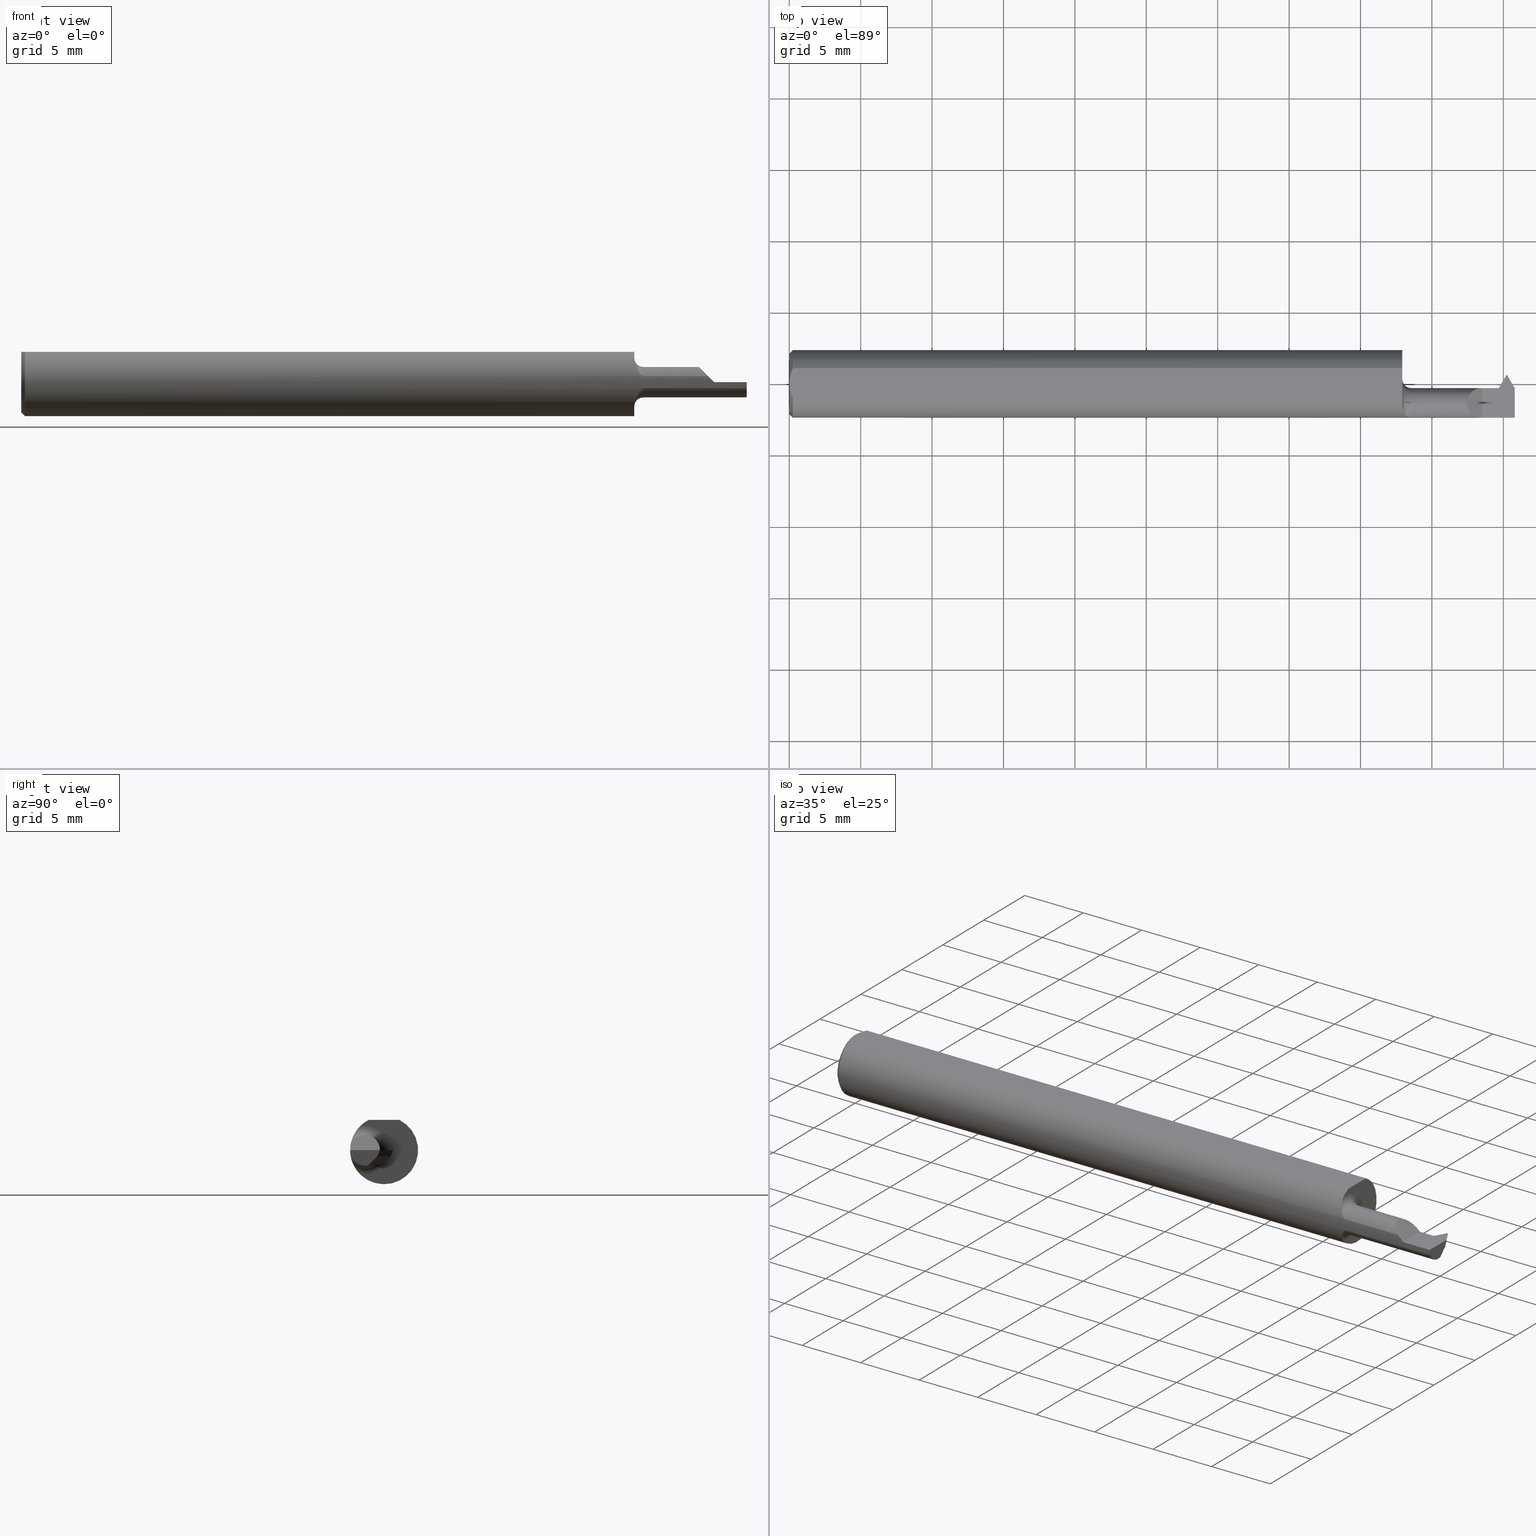
[diagram: canonical four-view strip — front | top / right | iso, engineering-drawing reading convention]
A machine part, canonical four-view strip (front | top / right | iso — engineering-drawing reading convention). The complete STEP part file that produces these views, byte-faithful:
ISO-10303-21;
HEADER;
FILE_DESCRIPTION (( 'STEP AP203' ),
    '1' );
FILE_NAME ('230154-TT120250.STEP',
    '2025-04-24T23:10:53',
    ( '' ),
    ( '' ),
    'SwSTEP 2.0',
    'SolidWorks 2024',
    '' );
FILE_SCHEMA (( 'CONFIG_CONTROL_DESIGN' ));
ENDSEC;

DATA;
#1 = CARTESIAN_POINT ( 'NONE',  ( 1.690000000000000169, -0.06665037313432835286, -0.06571672360255648160 ) ) ;
#2 = ADVANCED_FACE ( 'NONE', ( #304 ), #662, .F. ) ;
#3 = EDGE_CURVE ( 'NONE', #309, #173, #872, .T. ) ;
#4 = ORIENTED_EDGE ( 'NONE', *, *, #176, .T. ) ;
#5 = CARTESIAN_POINT ( 'NONE',  ( 1.978951940257920095, 0.01787431140439798075, -0.01699999999999998387 ) ) ;
#6 = CARTESIAN_POINT ( 'NONE',  ( -3.937007874047004035E-05, 0.01787431140439802932, -0.01700000000000000122 ) ) ;
#7 = ORIENTED_EDGE ( 'NONE', *, *, #480, .F. ) ;
#8 = CONICAL_SURFACE ( 'NONE', #443, 0.08360000000000017417, 0.7853981633974466137 ) ;
#9 = VECTOR ( 'NONE', #815, 39.37007874015748854 ) ;
#10 = PLANE ( 'NONE',  #388 ) ;
#11 = FACE_OUTER_BOUND ( 'NONE', #770, .T. ) ;
#12 = VERTEX_POINT ( 'NONE', #668 ) ;
#13 = CARTESIAN_POINT ( 'NONE',  ( 0.004072204388638597274, -0.02891446873729323561, 0.08359999999999992437 ) ) ;
#14 = EDGE_CURVE ( 'NONE', #843, #24, #200, .T. ) ;
#15 = CARTESIAN_POINT ( 'NONE',  ( 1.690000000000000169, -0.06665037313432835286, 0.06571672360255648160 ) ) ;
#16 = EDGE_LOOP ( 'NONE', ( #253, #167, #246, #64, #329 ) ) ;
#17 = EDGE_CURVE ( 'NONE', #651, #596, #832, .T. ) ;
#18 = ORIENTED_EDGE ( 'NONE', *, *, #189, .T. ) ;
#19 = VECTOR ( 'NONE', #268, 39.37007874015748854 ) ;
#20 = FACE_OUTER_BOUND ( 'NONE', #587, .T. ) ;
#21 = CC_DESIGN_SECURITY_CLASSIFICATION ( #319, ( #203 ) ) ;
#22 = EDGE_LOOP ( 'NONE', ( #210, #382, #705, #847 ) ) ;
#23 = ADVANCED_FACE ( 'NONE', ( #516 ), #391, .F. ) ;
#24 = VERTEX_POINT ( 'NONE', #105 ) ;
#25 = CARTESIAN_POINT ( 'NONE',  ( 0.000000000000000000, 0.000000000000000000, 0.08359999999999992437 ) ) ;
#26 = EDGE_CURVE ( 'NONE', #427, #168, #299, .T. ) ;
#27 = VERTEX_POINT ( 'NONE', #235 ) ;
#28 = DIRECTION ( 'NONE',  ( 0.1874275599918962809, 0.1874275599918962809, 0.9642312064598241861 ) ) ;
#29 = DIRECTION ( 'NONE',  ( 0.000000000000000000, -0.1908089953765452484, -0.9816271834476639757 ) ) ;
#30 = DIRECTION ( 'NONE',  ( 0.4999999999999919509, 0.8660254037844431485, 0.000000000000000000 ) ) ;
#31 = CARTESIAN_POINT ( 'NONE',  ( 0.000000000000000000, 0.04209513035969860567, 0.08359999999999989662 ) ) ;
#32 = VECTOR ( 'NONE', #508, 39.37007874015748854 ) ;
#33 = CC_DESIGN_APPROVAL ( #617, ( #319 ) ) ;
#34 = PLANE ( 'NONE',  #108 ) ;
#35 = CARTESIAN_POINT ( 'NONE',  ( 1.867999999999999217, -0.02899696961966997250, 0.04200000000000013445 ) ) ;
#36 = ADVANCED_FACE ( 'NONE', ( #810 ), #34, .T. ) ;
#37 = EDGE_LOOP ( 'NONE', ( #663, #225, #735, #561 ) ) ;
#38 = ORIENTED_EDGE ( 'NONE', *, *, #342, .F. ) ;
#39 = PERSON_AND_ORGANIZATION ( #580, #365 ) ;
#40 = DIRECTION ( 'NONE',  ( 0.1075127992097299201, 0.000000000000000000, -0.9942037004588587523 ) ) ;
#41 = CARTESIAN_POINT ( 'NONE',  ( 1.956215390309173907, -0.01159999999999992634, 0.000000000000000000 ) ) ;
#42 = FACE_OUTER_BOUND ( 'NONE', #541, .T. ) ;
#43 = ORIENTED_EDGE ( 'NONE', *, *, #665, .F. ) ;
#44 = CARTESIAN_POINT ( 'NONE',  ( 1.706246254951216512, -0.09087486346021449168, 0.02250610835616492084 ) ) ;
#45 = VECTOR ( 'NONE', #471, 39.37007874015748143 ) ;
#46 = DIRECTION ( 'NONE',  ( 0.000000000000000000, 0.000000000000000000, -1.000000000000000000 ) ) ;
#47 = AXIS2_PLACEMENT_3D ( 'NONE', #476, #748, #912 ) ;
#48 = VERTEX_POINT ( 'NONE', #472 ) ;
#49 = ADVANCED_FACE ( 'NONE', ( #535 ), #552, .F. ) ;
#50 = CARTESIAN_POINT ( 'NONE',  ( 1.961238788024069590, -0.03450815044185836372, -0.04200000000000025935 ) ) ;
#51 = DIRECTION ( 'NONE',  ( 0.7071067811865486830, 0.000000000000000000, -0.7071067811865462405 ) ) ;
#52 = LINE ( 'NONE', #540, #19 ) ;
#53 = EDGE_CURVE ( 'NONE', #387, #424, #160, .T. ) ;
#54 = VERTEX_POINT ( 'NONE', #679 ) ;
#55 =( LENGTH_UNIT ( ) NAMED_UNIT ( * ) SI_UNIT ( $, .METRE. ) );
#56 = DIRECTION ( 'NONE',  ( 0.1075127992097299201, 0.000000000000000000, -0.9942037004588587523 ) ) ;
#57 = DIRECTION ( 'NONE',  ( 0.000000000000000000, 0.000000000000000000, -1.000000000000000000 ) ) ;
#58 = ORIENTED_EDGE ( 'NONE', *, *, #408, .F. ) ;
#59 = DIRECTION ( 'NONE',  ( 0.000000000000000000, 0.000000000000000000, 1.000000000000000000 ) ) ;
#60 = CARTESIAN_POINT ( 'NONE',  ( 1.958065731429537326, -0.01495149155541251711, -0.01645920567192169295 ) ) ;
#61 = LINE ( 'NONE', #405, #817 ) ;
#62 = VECTOR ( 'NONE', #822, 39.37007874015748143 ) ;
#63 = TOROIDAL_SURFACE ( 'NONE', #577, 0.06700000000000001787, 0.02499999999999980016 ) ;
#64 = ORIENTED_EDGE ( 'NONE', *, *, #715, .T. ) ;
#65 = APPROVAL_PERSON_ORGANIZATION ( #197, #548, #475 ) ;
#66 = CARTESIAN_POINT ( 'NONE',  ( 1.714999999999999858, -0.09207014925373116498, 0.01685371224376601765 ) ) ;
#67 = CARTESIAN_POINT ( 'NONE',  ( 1.690000000000000169, 0.04209513035969860567, 0.08359999999999989662 ) ) ;
#68 = EDGE_CURVE ( 'NONE', #865, #833, #117, .T. ) ;
#69 = CARTESIAN_POINT ( 'NONE',  ( 1.976986228514259425, 0.02626993153835159925, 0.004871338202285987670 ) ) ;
#70 = EDGE_LOOP ( 'NONE', ( #513, #893, #148, #710, #695, #713 ) ) ;
#71 = CARTESIAN_POINT ( 'NONE',  ( 1.833607695154586548, -0.09207014925373123437, 0.01685371224376563948 ) ) ;
#72 = CARTESIAN_POINT ( 'NONE',  ( 0.000000000000000000, -0.04209513035969860567, 0.08359999999999989662 ) ) ;
#73 = APPLICATION_CONTEXT ( 'configuration controlled 3d designs of mechanical parts and assemblies' ) ;
#74 = VERTEX_POINT ( 'NONE', #486 ) ;
#75 = DIRECTION ( 'NONE',  ( -1.000000000000000000, -0.000000000000000000, -0.000000000000000000 ) ) ;
#76 = CARTESIAN_POINT ( 'NONE',  ( 1.710040276532751813, -0.09170035127622420956, -0.01877567467121209199 ) ) ;
#77 = ORIENTED_EDGE ( 'NONE', *, *, #670, .F. ) ;
#78 = EDGE_CURVE ( 'NONE', #48, #657, #604, .T. ) ;
#79 = AXIS2_PLACEMENT_3D ( 'NONE', #137, #141, #214 ) ;
#80 = ADVANCED_FACE ( 'NONE', ( #335 ), #839, .F. ) ;
#81 = AXIS2_PLACEMENT_3D ( 'NONE', #270, #401, #59 ) ;
#82 = FACE_OUTER_BOUND ( 'NONE', #823, .T. ) ;
#83 = CARTESIAN_POINT ( 'NONE',  ( 1.714999999999999858, -0.05360000000000004344, 0.000000000000000000 ) ) ;
#84 = ORIENTED_EDGE ( 'NONE', *, *, #774, .T. ) ;
#85 = EDGE_CURVE ( 'NONE', #230, #504, #791, .T. ) ;
#86 = FACE_OUTER_BOUND ( 'NONE', #99, .T. ) ;
#87 = DIRECTION ( 'NONE',  ( 0.000000000000000000, 0.000000000000000000, 1.000000000000000000 ) ) ;
#88 = PRODUCT_RELATED_PRODUCT_CATEGORY ( 'detail', '', ( #786 ) ) ;
#89 = ADVANCED_BREP_SHAPE_REPRESENTATION ( '230154-TT120250', ( #539, #643 ), #630 ) ;
#90 = ORIENTED_EDGE ( 'NONE', *, *, #870, .F. ) ;
#91 = DIRECTION ( 'NONE',  ( 0.000000000000000000, 0.000000000000000000, 1.000000000000000000 ) ) ;
#92 = EDGE_CURVE ( 'NONE', #504, #315, #263, .T. ) ;
#93 = DIRECTION ( 'NONE',  ( 1.000000000000000000, 0.000000000000000000, 0.000000000000000000 ) ) ;
#94 = VECTOR ( 'NONE', #755, 39.37007874015748854 ) ;
#95 = FACE_OUTER_BOUND ( 'NONE', #70, .T. ) ;
#96 = AXIS2_PLACEMENT_3D ( 'NONE', #567, #358, #638 ) ;
#97 = EDGE_CURVE ( 'NONE', #135, #653, #61, .T. ) ;
#98 = CARTESIAN_POINT ( 'NONE',  ( 2.000000000000000000, 0.000000000000000000, 0.000000000000000000 ) ) ;
#99 = EDGE_LOOP ( 'NONE', ( #336, #637, #600, #746 ) ) ;
#100 = CARTESIAN_POINT ( 'NONE',  ( 1.958123224213872859, -0.01490446525534110285, -0.01699999999999975489 ) ) ;
#101 = PLANE ( 'NONE',  #183 ) ;
#102 = EDGE_LOOP ( 'NONE', ( #619, #853 ) ) ;
#103 = CARTESIAN_POINT ( 'NONE',  ( 1.867999999999999661, -0.05360000000000004344, 0.04200000000000012751 ) ) ;
#104 = LINE ( 'NONE', #585, #655 ) ;
#105 = CARTESIAN_POINT ( 'NONE',  ( 2.000000000000000000, -0.09360000000000001652, 0.000000000000000000 ) ) ;
#106 = ORIENTED_EDGE ( 'NONE', *, *, #53, .F. ) ;
#107 = CARTESIAN_POINT ( 'NONE',  ( 0.009999999999999892655, 0.04209513035969860567, 0.08359999999999989662 ) ) ;
#108 = AXIS2_PLACEMENT_3D ( 'NONE', #819, #208, #57 ) ;
#109 = VECTOR ( 'NONE', #652, 39.37007874015748854 ) ;
#110 = VECTOR ( 'NONE', #282, 39.37007874015748143 ) ;
#111 = AXIS2_PLACEMENT_3D ( 'NONE', #275, #555, #412 ) ;
#112 = VERTEX_POINT ( 'NONE', #481 ) ;
#113 = ORIENTED_EDGE ( 'NONE', *, *, #764, .T. ) ;
#114 = ADVANCED_FACE ( 'NONE', ( #902 ), #273, .T. ) ;
#115 = APPLICATION_PROTOCOL_DEFINITION ( 'international standard', 'config_control_design', 1994, #73 ) ;
#116 = LINE ( 'NONE', #100, #850 ) ;
#117 = LINE ( 'NONE', #622, #229 ) ;
#118 = ORIENTED_EDGE ( 'NONE', *, *, #222, .T. ) ;
#119 = COORDINATED_UNIVERSAL_TIME_OFFSET ( 8, 0, .BEHIND. ) ;
#120 = CYLINDRICAL_SURFACE ( 'NONE', #47, 0.04200000000000012751 ) ;
#121 = CARTESIAN_POINT ( 'NONE',  ( 1.978951940257919873, 0.01787431140439389374, -0.01700000000000413680 ) ) ;
#122 = CARTESIAN_POINT ( 'NONE',  ( 1.946164006060341789, -0.01159999999999991940, -0.005408903059652859537 ) ) ;
#123 = VERTEX_POINT ( 'NONE', #252 ) ;
#124 = CARTESIAN_POINT ( 'NONE',  ( 1.710061339936166824, -0.09170362580915403239, 0.01875949767692880812 ) ) ;
#125 = LINE ( 'NONE', #303, #109 ) ;
#126 = ADVANCED_FACE ( 'NONE', ( #190 ), #186, .T. ) ;
#127 = CIRCLE ( 'NONE', #905, 0.06700000000000001787 ) ;
#128 = CARTESIAN_POINT ( 'NONE',  ( 1.945131938701440300, -0.01263206735890140542, -0.01071842933564135132 ) ) ;
#129 = VECTOR ( 'NONE', #687, 39.37007874015748143 ) ;
#130 = EDGE_LOOP ( 'NONE', ( #442, #436, #873, #143, #856, #264, #294, #310, #640, #614, #139, #758, #269 ) ) ;
#131 = PERSON_AND_ORGANIZATION ( #580, #365 ) ;
#132 = DIRECTION ( 'NONE',  ( 0.000000000000000000, 1.000000000000000000, 0.000000000000000000 ) ) ;
#133 = LINE ( 'NONE', #403, #849 ) ;
#134 = CARTESIAN_POINT ( 'NONE',  ( 1.976999999999999869, 0.02439999999999998420, 0.000000000000000000 ) ) ;
#135 = VERTEX_POINT ( 'NONE', #740 ) ;
#136 = DIRECTION ( 'NONE',  ( 1.000000000000000000, 0.000000000000000000, -0.000000000000000000 ) ) ;
#137 = CARTESIAN_POINT ( 'NONE',  ( 1.958123224213872859, -0.05360000000000004344, 0.000000000000000000 ) ) ;
#138 = CARTESIAN_POINT ( 'NONE',  ( 1.977999999999999758, 0.01952312029688617334, -0.01699999999999975489 ) ) ;
#139 = ORIENTED_EDGE ( 'NONE', *, *, #357, .F. ) ;
#140 = CALENDAR_DATE ( 2025, 24, 4 ) ;
#141 = DIRECTION ( 'NONE',  ( -1.000000000000000000, -0.000000000000000000, -0.000000000000000000 ) ) ;
#142 = CARTESIAN_POINT ( 'NONE',  ( 1.958160445373316572, -0.01548700727932105295, -0.01764701096325278426 ) ) ;
#143 = ORIENTED_EDGE ( 'NONE', *, *, #480, .T. ) ;
#144 = ORIENTED_EDGE ( 'NONE', *, *, #324, .T. ) ;
#145 = DIRECTION ( 'NONE',  ( -0.1095011742102286051, 0.1896615972205649703, 0.9757243316563983804 ) ) ;
#146 = CARTESIAN_POINT ( 'NONE',  ( 1.694085356245837781, -0.08239036684830185198, -0.04469806793346458446 ) ) ;
#147 = ADVANCED_FACE ( 'NONE', ( #393 ), #681, .T. ) ;
#148 = ORIENTED_EDGE ( 'NONE', *, *, #346, .T. ) ;
#149 = EDGE_CURVE ( 'NONE', #27, #112, #52, .T. ) ;
#150 = LINE ( 'NONE', #161, #788 ) ;
#151 = CARTESIAN_POINT ( 'NONE',  ( 1.709025502329856838, -0.09151353859653628409, -0.01967662315907504206 ) ) ;
#152 = ADVANCED_FACE ( 'NONE', ( #42 ), #618, .T. ) ;
#153 = ORIENTED_EDGE ( 'NONE', *, *, #164, .T. ) ;
#154 = AXIS2_PLACEMENT_3D ( 'NONE', #728, #885, #397 ) ;
#155 = LOCAL_TIME ( 16, 10, 53.00000000000000000, #119 ) ;
#156 = CARTESIAN_POINT ( 'NONE',  ( 1.910000000000000142, -0.09360000000000005815, 1.100475876354012249E-17 ) ) ;
#157 = CC_DESIGN_DATE_AND_TIME_ASSIGNMENT ( #829, #488, ( #782 ) ) ;
#158 = CARTESIAN_POINT ( 'NONE',  ( 1.697994345349610468, -0.08669318782781049171, -0.03564240466963953385 ) ) ;
#159 = ORIENTED_EDGE ( 'NONE', *, *, #848, .T. ) ;
#160 =( BOUNDED_CURVE ( )  B_SPLINE_CURVE ( 3, ( #689, #763, #531, #414 ),
 .UNSPECIFIED., .F., .F. ) 
 B_SPLINE_CURVE_WITH_KNOTS ( ( 4, 4 ),
 ( 2.786698003918578248, 3.036865397300280378 ),
 .UNSPECIFIED. ) 
 CURVE ( )  GEOMETRIC_REPRESENTATION_ITEM ( )  RATIONAL_B_SPLINE_CURVE ( ( 1.000000000000000000, 0.9947914859276562050, 0.9947914859276562050, 1.000000000000000000 ) ) 
 REPRESENTATION_ITEM ( '' )  );
#161 = CARTESIAN_POINT ( 'NONE',  ( 2.048539628981018268, -0.5838206687851058563, -0.7425220104241786467 ) ) ;
#162 = EDGE_CURVE ( 'NONE', #596, #781, #858, .T. ) ;
#163 = CARTESIAN_POINT ( 'NONE',  ( 2.000000000000000000, -0.2500000000000000555, 0.000000000000000000 ) ) ;
#164 = EDGE_CURVE ( 'NONE', #356, #48, #367, .T. ) ;
#165 = CALENDAR_DATE ( 2025, 24, 4 ) ;
#166 = LINE ( 'NONE', #71, #231 ) ;
#167 = ORIENTED_EDGE ( 'NONE', *, *, #670, .T. ) ;
#168 = VERTEX_POINT ( 'NONE', #15 ) ;
#169 = APPROVAL_ROLE ( '' ) ;
#170 = AXIS2_PLACEMENT_3D ( 'NONE', #138, #350, #882 ) ;
#171 = CARTESIAN_POINT ( 'NONE',  ( 1.957981087998196923, -0.01465827810819480582, -0.01573347692346801011 ) ) ;
#172 = AXIS2_PLACEMENT_3D ( 'NONE', #206, #754, #626 ) ;
#173 = VERTEX_POINT ( 'NONE', #909 ) ;
#174 = CARTESIAN_POINT ( 'NONE',  ( 1.976999999999999869, 0.02439999999999998420, 0.000000000000000000 ) ) ;
#175 = CARTESIAN_POINT ( 'NONE',  ( 2.042391769920532507, -0.1170066967947614445, -0.04200000000000003730 ) ) ;
#176 = EDGE_CURVE ( 'NONE', #27, #54, #279, .T. ) ;
#177 = EDGE_LOOP ( 'NONE', ( #58, #553, #517, #765 ) ) ;
#178 = DIRECTION ( 'NONE',  ( -0.000000000000000000, 0.000000000000000000, 1.000000000000000000 ) ) ;
#179 = EDGE_CURVE ( 'NONE', #723, #356, #429, .T. ) ;
#180 = EDGE_LOOP ( 'NONE', ( #84, #159 ) ) ;
#181 = ORIENTED_EDGE ( 'NONE', *, *, #357, .T. ) ;
#182 = APPLICATION_PROTOCOL_DEFINITION ( 'international standard', 'config_control_design', 1994, #500 ) ;
#183 = AXIS2_PLACEMENT_3D ( 'NONE', #243, #462, #738 ) ;
#184 =( BOUNDED_CURVE ( )  B_SPLINE_CURVE ( 3, ( #271, #338, #60, #629 ),
 .UNSPECIFIED., .F., .F. ) 
 B_SPLINE_CURVE_WITH_KNOTS ( ( 4, 4 ),
 ( 4.464501209210057553, 4.520402762665321816 ),
 .UNSPECIFIED. ) 
 CURVE ( )  GEOMETRIC_REPRESENTATION_ITEM ( )  RATIONAL_B_SPLINE_CURVE ( ( 1.000000000000000000, 0.9997396016470321278, 0.9997396016470321278, 1.000000000000000000 ) ) 
 REPRESENTATION_ITEM ( '' )  );
#185 = FACE_OUTER_BOUND ( 'NONE', #570, .T. ) ;
#186 = CYLINDRICAL_SURFACE ( 'NONE', #563, 0.04200000000000012751 ) ;
#187 = EDGE_LOOP ( 'NONE', ( #904, #217, #38, #344, #726, #300, #719, #43, #323, #4, #249, #633 ) ) ;
#188 = CARTESIAN_POINT ( 'NONE',  ( 1.961640102722212120, -0.05360000000000004344, -0.04200000000000008588 ) ) ;
#189 = EDGE_CURVE ( 'NONE', #74, #173, #362, .T. ) ;
#190 = FACE_OUTER_BOUND ( 'NONE', #566, .T. ) ;
#191 = ORIENTED_EDGE ( 'NONE', *, *, #408, .T. ) ;
#192 = PERSON_AND_ORGANIZATION ( #580, #365 ) ;
#193 = ADVANCED_FACE ( 'NONE', ( #11 ), #292, .F. ) ;
#194 = CARTESIAN_POINT ( 'NONE',  ( 2.000000000000000000, 0.000000000000000000, -0.04200000000000003730 ) ) ;
#195 = CARTESIAN_POINT ( 'NONE',  ( 1.947215390309172900, -0.01159999999999992634, 0.000000000000000000 ) ) ;
#196 = ORIENTED_EDGE ( 'NONE', *, *, #571, .F. ) ;
#197 = PERSON_AND_ORGANIZATION ( #580, #365 ) ;
#198 = CARTESIAN_POINT ( 'NONE',  ( 1.697959848388075121, -0.08665969772256694459, 0.03571742193933166026 ) ) ;
#199 = DIRECTION ( 'NONE',  ( 0.5000000000000036637, -0.8660254037844364872, 0.000000000000000000 ) ) ;
#200 = CIRCLE ( 'NONE', #509, 0.09360000000000001652 ) ;
#201 = TOROIDAL_SURFACE ( 'NONE', #317, 0.06700000000000001787, 0.02499999999999980016 ) ;
#202 = CARTESIAN_POINT ( 'NONE',  ( 1.956215390309173907, -0.01159999999999992634, 0.000000000000000000 ) ) ;
#203 = PRODUCT_DEFINITION_FORMATION_WITH_SPECIFIED_SOURCE ( 'ANY', '', #786, .NOT_KNOWN. ) ;
#204 = ORIENTED_EDGE ( 'NONE', *, *, #505, .F. ) ;
#205 = CALENDAR_DATE ( 2025, 24, 4 ) ;
#206 = CARTESIAN_POINT ( 'NONE',  ( 1.714999999999999858, -0.05360000000000004344, 0.000000000000000000 ) ) ;
#207 = DIRECTION ( 'NONE',  ( 0.000000000000000000, 0.000000000000000000, -1.000000000000000000 ) ) ;
#208 = DIRECTION ( 'NONE',  ( 1.000000000000000000, 0.000000000000000000, 0.000000000000000000 ) ) ;
#209 = EDGE_CURVE ( 'NONE', #723, #657, #842, .T. ) ;
#210 = ORIENTED_EDGE ( 'NONE', *, *, #459, .T. ) ;
#211 = CARTESIAN_POINT ( 'NONE',  ( 1.979000000000000092, 0.02439999999999998420, 0.000000000000000000 ) ) ;
#212 = DIRECTION ( 'NONE',  ( 0.000000000000000000, 0.000000000000000000, -1.000000000000000000 ) ) ;
#213 = EDGE_LOOP ( 'NONE', ( #558, #877, #811, #106, #601, #623, #305, #113 ) ) ;
#214 = DIRECTION ( 'NONE',  ( 0.000000000000000000, 2.642412493871675111E-15, -1.000000000000000000 ) ) ;
#215 = CARTESIAN_POINT ( 'NONE',  ( 1.689999999999999947, 0.02439999999999996685, 3.794974385729897042E-17 ) ) ;
#216 = TOROIDAL_SURFACE ( 'NONE', #363, 0.06700000000000001787, 0.02499999999999980016 ) ;
#217 = ORIENTED_EDGE ( 'NONE', *, *, #900, .T. ) ;
#218 = VECTOR ( 'NONE', #799, 39.37007874015748854 ) ;
#219 = DIRECTION ( 'NONE',  ( -1.000000000000000000, -0.000000000000000000, -0.000000000000000000 ) ) ;
#220 = DIRECTION ( 'NONE',  ( 0.000000000000000000, -0.7071067811865461294, -0.7071067811865489050 ) ) ;
#221 = ORIENTED_EDGE ( 'NONE', *, *, #209, .T. ) ;
#222 = EDGE_CURVE ( 'NONE', #432, #889, #127, .T. ) ;
#223 = CARTESIAN_POINT ( 'NONE',  ( 1.690000000000000169, 0.000000000000000000, 0.000000000000000000 ) ) ;
#224 = DIRECTION ( 'NONE',  ( 1.000000000000000000, -0.000000000000000000, -0.000000000000000000 ) ) ;
#225 = ORIENTED_EDGE ( 'NONE', *, *, #222, .F. ) ;
#226 = CC_DESIGN_DATE_AND_TIME_ASSIGNMENT ( #395, #759, ( #319 ) ) ;
#227 = DIRECTION ( 'NONE',  ( 0.000000000000000000, 0.000000000000000000, 1.000000000000000000 ) ) ;
#228 = CARTESIAN_POINT ( 'NONE',  ( 1.958233473925546475, -0.01559817617613182966, -0.01788466902292853641 ) ) ;
#229 = VECTOR ( 'NONE', #892, 39.37007874015748143 ) ;
#230 = VERTEX_POINT ( 'NONE', #435 ) ;
#231 = VECTOR ( 'NONE', #434, 39.37007874015748143 ) ;
#232 = CARTESIAN_POINT ( 'NONE',  ( 1.689999999999999947, -0.01465827810819489777, -0.01573347692346844379 ) ) ;
#233 = ORIENTED_EDGE ( 'NONE', *, *, #78, .F. ) ;
#234 = CARTESIAN_POINT ( 'NONE',  ( 1.714999999999999858, -0.09207014925373116498, -0.01685371224376602112 ) ) ;
#235 = CARTESIAN_POINT ( 'NONE',  ( 1.958233473925546475, -0.01559817617613182966, -0.01788466902292853641 ) ) ;
#236 = VERTEX_POINT ( 'NONE', #499 ) ;
#237 = DIRECTION ( 'NONE',  ( 1.000000000000000000, 0.000000000000000000, 0.000000000000000000 ) ) ;
#238 = DIRECTION ( 'NONE',  ( 0.000000000000000000, 0.000000000000000000, 1.000000000000000000 ) ) ;
#239 = ORIENTED_EDGE ( 'NONE', *, *, #68, .F. ) ;
#240 = VECTOR ( 'NONE', #644, 39.37007874015748143 ) ;
#241 = CARTESIAN_POINT ( 'NONE',  ( 1.947215390309172900, -0.01159999999999992634, 0.000000000000000000 ) ) ;
#242 = AXIS2_PLACEMENT_3D ( 'NONE', #820, #376, #178 ) ;
#243 = CARTESIAN_POINT ( 'NONE',  ( 2.191425808082400728, 0.09360000000000001652, 0.08359999999999992437 ) ) ;
#244 = EDGE_CURVE ( 'NONE', #54, #387, #649, .T. ) ;
#245 = ORIENTED_EDGE ( 'NONE', *, *, #254, .T. ) ;
#246 = ORIENTED_EDGE ( 'NONE', *, *, #505, .T. ) ;
#247 = CARTESIAN_POINT ( 'NONE',  ( 2.000715925234052950, 0.03386825694320300117, -0.04200000000000003730 ) ) ;
#248 = ADVANCED_FACE ( 'NONE', ( #712 ), #216, .F. ) ;
#249 = ORIENTED_EDGE ( 'NONE', *, *, #441, .T. ) ;
#250 = DIRECTION ( 'NONE',  ( 1.000000000000000000, 0.000000000000000000, 0.000000000000000000 ) ) ;
#251 =( BOUNDED_CURVE ( )  B_SPLINE_CURVE ( 3, ( #103, #35, #534, #722 ),
 .UNSPECIFIED., .F., .T. ) 
 B_SPLINE_CURVE_WITH_KNOTS ( ( 4, 4 ),
 ( 0.000000000000000000, 1.570796326794896114 ),
 .UNSPECIFIED. ) 
 CURVE ( )  GEOMETRIC_REPRESENTATION_ITEM ( )  RATIONAL_B_SPLINE_CURVE ( ( 1.000000000000000000, 0.8047378541243650485, 0.8047378541243650485, 1.000000000000000000 ) ) 
 REPRESENTATION_ITEM ( '' )  );
#252 = CARTESIAN_POINT ( 'NONE',  ( 0.009999999999999892655, 0.000000000000000000, -0.09360000000000003040 ) ) ;
#253 = ORIENTED_EDGE ( 'NONE', *, *, #764, .F. ) ;
#254 = EDGE_CURVE ( 'NONE', #12, #309, #639, .T. ) ;
#255 = CARTESIAN_POINT ( 'NONE',  ( 1.689999999999999947, -0.05360000000000004344, 0.000000000000000000 ) ) ;
#256 = VECTOR ( 'NONE', #51, 39.37007874015748854 ) ;
#257 = CARTESIAN_POINT ( 'NONE',  ( 1.714999999999999858, -0.05360000000000003650, -0.06700000000000001787 ) ) ;
#258 = DIRECTION ( 'NONE',  ( -1.000000000000000000, -0.000000000000000000, -0.000000000000000000 ) ) ;
#259 = EDGE_CURVE ( 'NONE', #685, #427, #278, .T. ) ;
#260 = ORIENTED_EDGE ( 'NONE', *, *, #489, .F. ) ;
#261 = CARTESIAN_POINT ( 'NONE',  ( 1.690000000000000169, 0.09360000000000001652, 0.08359999999999992437 ) ) ;
#262 = CARTESIAN_POINT ( 'NONE',  ( 2.000000000000000000, -0.01197306695894668517, 0.000000000000000000 ) ) ;
#263 = LINE ( 'NONE', #202, #62 ) ;
#264 = ORIENTED_EDGE ( 'NONE', *, *, #803, .F. ) ;
#265 = PERSON_AND_ORGANIZATION ( #580, #365 ) ;
#266 = CARTESIAN_POINT ( 'NONE',  ( 2.152215390309172971, -0.05360000000000004344, -0.04200000000000003730 ) ) ;
#267 = PLANE ( 'NONE',  #802 ) ;
#268 = DIRECTION ( 'NONE',  ( -0.09759940488031876304, 0.6141129260146368507, 0.7831600540558415480 ) ) ;
#269 = ORIENTED_EDGE ( 'NONE', *, *, #162, .F. ) ;
#270 = CARTESIAN_POINT ( 'NONE',  ( 2.000000000000000000, -0.05360000000000004344, 0.000000000000000000 ) ) ;
#271 = CARTESIAN_POINT ( 'NONE',  ( 1.958233473925546475, -0.01559817617613182966, -0.01788466902292853641 ) ) ;
#272 = AXIS2_PLACEMENT_3D ( 'NONE', #371, #572, #778 ) ;
#273 = PLANE ( 'NONE',  #170 ) ;
#274 = ORIENTED_EDGE ( 'NONE', *, *, #860, .T. ) ;
#275 = CARTESIAN_POINT ( 'NONE',  ( 1.690000000000000169, -0.05360000000000004344, 0.000000000000000000 ) ) ;
#276 = CARTESIAN_POINT ( 'NONE',  ( 0.009999999999999892655, 0.000000000000000000, 0.000000000000000000 ) ) ;
#277 = EDGE_CURVE ( 'NONE', #432, #653, #627, .T. ) ;
#278 = LINE ( 'NONE', #72, #875 ) ;
#279 =( BOUNDED_CURVE ( )  B_SPLINE_CURVE ( 3, ( #228, #846, #142, #296 ),
 .UNSPECIFIED., .F., .T. ) 
 B_SPLINE_CURVE_WITH_KNOTS ( ( 4, 4 ),
 ( 3.487116828093230314, 3.496487303261008428 ),
 .UNSPECIFIED. ) 
 CURVE ( )  GEOMETRIC_REPRESENTATION_ITEM ( )  RATIONAL_B_SPLINE_CURVE ( ( 1.000000000000000000, 0.9999926828629792652, 0.9999926828629792652, 1.000000000000000000 ) ) 
 REPRESENTATION_ITEM ( '' )  );
#280 = ORIENTED_EDGE ( 'NONE', *, *, #744, .F. ) ;
#281 =( NAMED_UNIT ( * ) PLANE_ANGLE_UNIT ( ) SI_UNIT ( $, .RADIAN. ) );
#282 = DIRECTION ( 'NONE',  ( -1.000000000000000000, -0.000000000000000000, -0.000000000000000000 ) ) ;
#283 = ORIENTED_EDGE ( 'NONE', *, *, #259, .T. ) ;
#284 =( BOUNDED_CURVE ( )  B_SPLINE_CURVE ( 3, ( #494, #417, #347, #768 ),
 .UNSPECIFIED., .F., .T. ) 
 B_SPLINE_CURVE_WITH_KNOTS ( ( 4, 4 ),
 ( 5.125301605908232361, 6.283185307179586232 ),
 .UNSPECIFIED. ) 
 CURVE ( )  GEOMETRIC_REPRESENTATION_ITEM ( )  RATIONAL_B_SPLINE_CURVE ( ( 1.000000000000000000, 0.8913613818013886858, 0.8913613818013886858, 1.000000000000000000 ) ) 
 REPRESENTATION_ITEM ( '' )  );
#285 = EDGE_CURVE ( 'NONE', #840, #865, #784, .T. ) ;
#286 = FACE_OUTER_BOUND ( 'NONE', #180, .T. ) ;
#287 = CARTESIAN_POINT ( 'NONE',  ( 1.690000000000000169, -0.07042526556309515462, -0.06188820058547977315 ) ) ;
#288 = VECTOR ( 'NONE', #224, 39.37007874015748143 ) ;
#289 = ORIENTED_EDGE ( 'NONE', *, *, #78, .T. ) ;
#290 = EDGE_CURVE ( 'NONE', #843, #596, #698, .T. ) ;
#291 = CARTESIAN_POINT ( 'NONE',  ( 0.000000000000000000, 0.000000000000000000, 0.000000000000000000 ) ) ;
#292 = PLANE ( 'NONE',  #532 ) ;
#293 = CC_DESIGN_PERSON_AND_ORGANIZATION_ASSIGNMENT ( #131, #747, ( #203 ) ) ;
#294 = ORIENTED_EDGE ( 'NONE', *, *, #26, .F. ) ;
#295 = CARTESIAN_POINT ( 'NONE',  ( 0.000000000000000000, 0.000000000000000000, 0.08359999999999992437 ) ) ;
#296 = CARTESIAN_POINT ( 'NONE',  ( 1.958123224213872859, -0.01543225915984473146, -0.01752779390450338523 ) ) ;
#297 = ORIENTED_EDGE ( 'NONE', *, *, #290, .T. ) ;
#298 = CARTESIAN_POINT ( 'NONE',  ( 1.714999999999999858, -0.05360000000000004344, 0.000000000000000000 ) ) ;
#299 = CIRCLE ( 'NONE', #862, 0.09360000000000001652 ) ;
#300 = ORIENTED_EDGE ( 'NONE', *, *, #777, .T. ) ;
#301 = AXIS2_PLACEMENT_3D ( 'NONE', #223, #864, #700 ) ;
#302 = LOCAL_TIME ( 16, 10, 53.00000000000000000, #469 ) ;
#303 = CARTESIAN_POINT ( 'NONE',  ( 1.956215390309173907, -0.01159999999999992634, 0.000000000000000000 ) ) ;
#304 = FACE_OUTER_BOUND ( 'NONE', #910, .T. ) ;
#305 = ORIENTED_EDGE ( 'NONE', *, *, #149, .T. ) ;
#306 = PERSON_AND_ORGANIZATION_ROLE ( 'design_owner' ) ;
#307 = DIRECTION ( 'NONE',  ( 0.000000000000000000, 0.000000000000000000, 1.000000000000000000 ) ) ;
#308 = LINE ( 'NONE', #327, #550 ) ;
#309 = VERTEX_POINT ( 'NONE', #821 ) ;
#310 = ORIENTED_EDGE ( 'NONE', *, *, #259, .F. ) ;
#311 = EDGE_CURVE ( 'NONE', #173, #657, #800, .T. ) ;
#312 = CARTESIAN_POINT ( 'NONE',  ( 1.690000000000000169, -0.06665037313432835286, -0.06571672360255648160 ) ) ;
#313 = EDGE_CURVE ( 'NONE', #889, #651, #402, .T. ) ;
#314 = DIRECTION ( 'NONE',  ( 0.000000000000000000, 0.000000000000000000, 1.000000000000000000 ) ) ;
#315 = VERTEX_POINT ( 'NONE', #41 ) ;
#316 = ADVANCED_FACE ( 'NONE', ( #185 ), #101, .T. ) ;
#317 = AXIS2_PLACEMENT_3D ( 'NONE', #654, #75, #227 ) ;
#318 = DIRECTION ( 'NONE',  ( -1.000000000000000000, -0.000000000000000000, -0.000000000000000000 ) ) ;
#319 = SECURITY_CLASSIFICATION ( '', '', #625 ) ;
#320 = ORIENTED_EDGE ( 'NONE', *, *, #26, .T. ) ;
#321 = ORIENTED_EDGE ( 'NONE', *, *, #739, .F. ) ;
#322 = FACE_OUTER_BOUND ( 'NONE', #583, .T. ) ;
#323 = ORIENTED_EDGE ( 'NONE', *, *, #473, .F. ) ;
#324 = EDGE_CURVE ( 'NONE', #510, #828, #308, .T. ) ;
#325 = APPROVAL_STATUS ( 'not_yet_approved' ) ;
#326 = CARTESIAN_POINT ( 'NONE',  ( 0.009999999999999892655, -0.04209513035969860567, 0.08359999999999989662 ) ) ;
#327 = CARTESIAN_POINT ( 'NONE',  ( 1.910000000000000142, -0.2500000000000000555, 1.100475876354012249E-17 ) ) ;
#328 = DIRECTION ( 'NONE',  ( 0.000000000000000000, 0.000000000000000000, 1.000000000000000000 ) ) ;
#329 = ORIENTED_EDGE ( 'NONE', *, *, #179, .F. ) ;
#330 = SHAPE_DEFINITION_REPRESENTATION ( #648, #89 ) ;
#331 = CARTESIAN_POINT ( 'NONE',  ( 1.690533642810113868, -0.07379783313327893668, 0.05781434694793456674 ) ) ;
#332 = VECTOR ( 'NONE', #816, 39.37007874015748143 ) ;
#333 = CARTESIAN_POINT ( 'NONE',  ( 2.000000000000000000, -0.01040109878389459952, 0.004043537593970810730 ) ) ;
#334 = AXIS2_PLACEMENT_3D ( 'NONE', #266, #615, #136 ) ;
#335 = FACE_OUTER_BOUND ( 'NONE', #102, .T. ) ;
#336 = ORIENTED_EDGE ( 'NONE', *, *, #646, .F. ) ;
#337 = LINE ( 'NONE', #261, #349 ) ;
#338 = CARTESIAN_POINT ( 'NONE',  ( 1.958149881984653451, -0.01526487251527738551, -0.01717645647600322609 ) ) ;
#339 = DIRECTION ( 'NONE',  ( -1.000000000000000000, -0.000000000000000000, -0.000000000000000000 ) ) ;
#340 = ORIENTED_EDGE ( 'NONE', *, *, #92, .T. ) ;
#341 = CARTESIAN_POINT ( 'NONE',  ( 1.958123224213872859, -0.01490446525534110285, -0.01699999999999975489 ) ) ;
#342 = EDGE_CURVE ( 'NONE', #653, #651, #590, .T. ) ;
#343 = DIRECTION ( 'NONE',  ( 0.8501140779110486490, -0.4908135917238245494, 0.1908089953765452207 ) ) ;
#344 = ORIENTED_EDGE ( 'NONE', *, *, #97, .F. ) ;
#345 = CARTESIAN_POINT ( 'NONE',  ( 1.960072361890374815, -0.02716878841581243237, -0.03264032864711860493 ) ) ;
#346 = EDGE_CURVE ( 'NONE', #492, #24, #104, .T. ) ;
#347 = CARTESIAN_POINT ( 'NONE',  ( 1.867999999999999661, -0.07078705688761247061, 0.04200000000000013445 ) ) ;
#348 = VECTOR ( 'NONE', #859, 39.37007874015748143 ) ;
#349 = VECTOR ( 'NONE', #132, 39.37007874015748143 ) ;
#350 = DIRECTION ( 'NONE',  ( 0.7745966692414809618, 0.4472135954999609253, -0.4472135954999591489 ) ) ;
#351 = ORIENTED_EDGE ( 'NONE', *, *, #911, .F. ) ;
#352 = DATE_AND_TIME ( #205, #697 ) ;
#353 = DIRECTION ( 'NONE',  ( 0.000000000000000000, 0.000000000000000000, -1.000000000000000000 ) ) ;
#354 = FACE_OUTER_BOUND ( 'NONE', #806, .T. ) ;
#355 = CARTESIAN_POINT ( 'NONE',  ( 2.000000000000000000, -0.01858199746962910237, -0.01699999999999975489 ) ) ;
#356 = VERTEX_POINT ( 'NONE', #384 ) ;
#357 = EDGE_CURVE ( 'NONE', #482, #776, #666, .T. ) ;
#358 = DIRECTION ( 'NONE',  ( -1.000000000000000000, -0.000000000000000000, -0.000000000000000000 ) ) ;
#359 = DIRECTION ( 'NONE',  ( 0.000000000000000000, -1.000000000000000000, 0.000000000000000000 ) ) ;
#360 = EDGE_LOOP ( 'NONE', ( #660, #351, #320, #792, #118, #394 ) ) ;
#361 = DIRECTION ( 'NONE',  ( 0.000000000000000000, -0.3583679495452941066, -0.9335804264972040745 ) ) ;
#362 = LINE ( 'NONE', #560, #240 ) ;
#363 = AXIS2_PLACEMENT_3D ( 'NONE', #83, #423, #87 ) ;
#364 = EDGE_LOOP ( 'NONE', ( #868, #374, #659, #897, #280, #18 ) ) ;
#365 = ORGANIZATION ( 'UNSPECIFIED', 'UNSPECIFIED', '' ) ;
#366 = DIRECTION ( 'NONE',  ( 0.000000000000000000, -0.9335804264972041855, 0.3583679495452941621 ) ) ;
#367 = LINE ( 'NONE', #215, #348 ) ;
#368 = ORIENTED_EDGE ( 'NONE', *, *, #179, .T. ) ;
#369 = CARTESIAN_POINT ( 'NONE',  ( 1.714999999999999858, -0.05360000000000003650, -0.04200000000000021078 ) ) ;
#370 = ORIENTED_EDGE ( 'NONE', *, *, #544, .F. ) ;
#371 = CARTESIAN_POINT ( 'NONE',  ( -3.937007874047004035E-05, 0.01787431140439802932, -0.01700000000000000122 ) ) ;
#372 = DIRECTION ( 'NONE',  ( 0.000000000000000000, 0.000000000000000000, -1.000000000000000000 ) ) ;
#373 = VECTOR ( 'NONE', #545, 39.37007874015748143 ) ;
#374 = ORIENTED_EDGE ( 'NONE', *, *, #493, .F. ) ;
#375 = APPROVAL_PERSON_ORGANIZATION ( #39, #575, #169 ) ;
#376 = DIRECTION ( 'NONE',  ( -1.000000000000000000, 0.000000000000000000, -0.000000000000000000 ) ) ;
#377 = CARTESIAN_POINT ( 'NONE',  ( 1.714999999999999858, -0.05360000000000004344, 0.000000000000000000 ) ) ;
#378 = EDGE_CURVE ( 'NONE', #657, #12, #133, .T. ) ;
#379 = CARTESIAN_POINT ( 'NONE',  ( 0.000000000000000000, 0.000000000000000000, 0.000000000000000000 ) ) ;
#380 = CARTESIAN_POINT ( 'NONE',  ( 1.689999999999999947, -0.01159999999999992634, 3.794974385729897042E-17 ) ) ;
#381 = ADVANCED_FACE ( 'NONE', ( #354 ), #485, .F. ) ;
#382 = ORIENTED_EDGE ( 'NONE', *, *, #97, .T. ) ;
#383 = DIRECTION ( 'NONE',  ( -1.000000000000000000, -0.000000000000000000, -0.000000000000000000 ) ) ;
#384 = CARTESIAN_POINT ( 'NONE',  ( 1.976999999999999869, 0.02439999999999998420, 0.000000000000000000 ) ) ;
#385 = CC_DESIGN_PERSON_AND_ORGANIZATION_ASSIGNMENT ( #691, #824, ( #203 ) ) ;
#386 = CARTESIAN_POINT ( 'NONE',  ( 1.690000000000000169, 0.000000000000000000, 0.000000000000000000 ) ) ;
#387 = VERTEX_POINT ( 'NONE', #537 ) ;
#388 = AXIS2_PLACEMENT_3D ( 'NONE', #647, #866, #857 ) ;
#389 = CARTESIAN_POINT ( 'NONE',  ( 0.009999999999999892655, 0.000000000000000000, 0.000000000000000000 ) ) ;
#390 = AXIS2_PLACEMENT_3D ( 'NONE', #255, #383, #307 ) ;
#391 = PLANE ( 'NONE',  #667 ) ;
#392 = CARTESIAN_POINT ( 'NONE',  ( 0.000000000000000000, 0.000000000000000000, 0.000000000000000000 ) ) ;
#393 = FACE_OUTER_BOUND ( 'NONE', #177, .T. ) ;
#394 = ORIENTED_EDGE ( 'NONE', *, *, #646, .T. ) ;
#395 = DATE_AND_TIME ( #620, #302 ) ;
#396 = CARTESIAN_POINT ( 'NONE',  ( 1.910000000000000142, -0.01159999999999992634, 3.794974385729897042E-17 ) ) ;
#397 = DIRECTION ( 'NONE',  ( 0.000000000000000000, 0.000000000000000000, 1.000000000000000000 ) ) ;
#398 = CARTESIAN_POINT ( 'NONE',  ( 0.000000000000000000, 0.000000000000000000, 0.000000000000000000 ) ) ;
#399 = ORIENTED_EDGE ( 'NONE', *, *, #831, .F. ) ;
#400 = APPROVAL_STATUS ( 'not_yet_approved' ) ;
#401 = DIRECTION ( 'NONE',  ( 1.000000000000000000, 0.000000000000000000, 0.000000000000000000 ) ) ;
#402 = CIRCLE ( 'NONE', #771, 0.02499999999999980016 ) ;
#403 = CARTESIAN_POINT ( 'NONE',  ( 1.977999999999999758, 0.01952312029688617334, -0.01699999999999975489 ) ) ;
#404 = CIRCLE ( 'NONE', #736, 0.09360000000000001652 ) ;
#405 = CARTESIAN_POINT ( 'NONE',  ( 1.689999999999999947, -0.05360000000000004344, 0.04200000000000012751 ) ) ;
#406 = ORIENTED_EDGE ( 'NONE', *, *, #311, .F. ) ;
#407 = APPROVAL_ROLE ( '' ) ;
#408 = EDGE_CURVE ( 'NONE', #690, #123, #908, .T. ) ;
#409 = DIRECTION ( 'NONE',  ( 1.000000000000000000, 0.000000000000000000, 0.000000000000000000 ) ) ;
#410 = ADVANCED_FACE ( 'NONE', ( #616 ), #8, .T. ) ;
#411 = ORIENTED_EDGE ( 'NONE', *, *, #378, .T. ) ;
#412 = DIRECTION ( 'NONE',  ( 0.000000000000000000, 0.000000000000000000, 1.000000000000000000 ) ) ;
#413 = DIRECTION ( 'NONE',  ( 1.000000000000000000, 0.000000000000000000, 0.000000000000000000 ) ) ;
#414 = CARTESIAN_POINT ( 'NONE',  ( 1.960072361890374815, -0.02716878841581243237, -0.03264032864711860493 ) ) ;
#415 = ORIENTED_EDGE ( 'NONE', *, *, #757, .T. ) ;
#416 = CARTESIAN_POINT ( 'NONE',  ( 2.000000000000000000, -0.05360000000000004344, -0.04200000000000003730 ) ) ;
#417 = CARTESIAN_POINT ( 'NONE',  ( 1.877403701001500558, -0.08517334660846820338, 0.03259629899849934148 ) ) ;
#418 = LOCAL_TIME ( 16, 10, 53.00000000000000000, #607 ) ;
#419 = DIRECTION ( 'NONE',  ( -0.7071067811865507924, 0.000000000000000000, 0.7071067811865441310 ) ) ;
#420 = ORIENTED_EDGE ( 'NONE', *, *, #277, .F. ) ;
#421 = ADVANCED_FACE ( 'NONE', ( #693 ), #267, .T. ) ;
#422 = CARTESIAN_POINT ( 'NONE',  ( 1.960072361890374815, -0.02716878841581243237, -0.03264032864711860493 ) ) ;
#423 = DIRECTION ( 'NONE',  ( -1.000000000000000000, -0.000000000000000000, -0.000000000000000000 ) ) ;
#424 = VERTEX_POINT ( 'NONE', #422 ) ;
#425 = PLANE ( 'NONE',  #669 ) ;
#426 = CARTESIAN_POINT ( 'NONE',  ( 1.692599756579036718, -0.07984340602545494936, -0.04912629365152905436 ) ) ;
#427 = VERTEX_POINT ( 'NONE', #837 ) ;
#428 = DIRECTION ( 'NONE',  ( 0.000000000000000000, 0.000000000000000000, -1.000000000000000000 ) ) ;
#429 = LINE ( 'NONE', #69, #32 ) ;
#430 = AXIS2_PLACEMENT_3D ( 'NONE', #377, #805, #314 ) ;
#431 = AXIS2_PLACEMENT_3D ( 'NONE', #467, #745, #46 ) ;
#432 = VERTEX_POINT ( 'NONE', #635 ) ;
#433 = APPROVAL_PERSON_ORGANIZATION ( #192, #617, #407 ) ;
#434 = DIRECTION ( 'NONE',  ( 1.000000000000000000, 0.000000000000000000, 0.000000000000000000 ) ) ;
#435 = CARTESIAN_POINT ( 'NONE',  ( 1.944157112200977977, -0.01465827810819488389, -0.01573347692346841256 ) ) ;
#436 = ORIENTED_EDGE ( 'NONE', *, *, #14, .T. ) ;
#437 = EDGE_CURVE ( 'NONE', #48, #492, #845, .T. ) ;
#438 = LINE ( 'NONE', #232, #804 ) ;
#439 = ORIENTED_EDGE ( 'NONE', *, *, #838, .T. ) ;
#440 = CARTESIAN_POINT ( 'NONE',  ( 1.977048059742079422, 0.01787431140439777605, -0.01699999999999975489 ) ) ;
#441 = EDGE_CURVE ( 'NONE', #54, #387, #521, .T. ) ;
#442 = ORIENTED_EDGE ( 'NONE', *, *, #290, .F. ) ;
#443 = AXIS2_PLACEMENT_3D ( 'NONE', #490, #409, #207 ) ;
#444 = AXIS2_PLACEMENT_3D ( 'NONE', #598, #874, #40 ) ;
#445 = LINE ( 'NONE', #380, #835 ) ;
#446 = B_SPLINE_CURVE_WITH_KNOTS ( 'NONE', 3,
 ( #25, #453, #737, #658, #672, #529 ),
 .UNSPECIFIED., .F., .F.,
 ( 4, 2, 4 ),
 ( 0.001744210492668867886, 0.002295110172257196733, 0.002846009851845525580 ),
 .UNSPECIFIED. ) ;
#447 = EDGE_CURVE ( 'NONE', #123, #776, #886, .T. ) ;
#448 = DIRECTION ( 'NONE',  ( 0.000000000000000000, 0.000000000000000000, 1.000000000000000000 ) ) ;
#449 = ORIENTED_EDGE ( 'NONE', *, *, #92, .F. ) ;
#450 = LINE ( 'NONE', #461, #772 ) ;
#451 = DIRECTION ( 'NONE',  ( -0.000000000000000000, 1.000000000000000000, 1.224646799147353207E-16 ) ) ;
#452 = DIRECTION ( 'NONE',  ( -1.224646799147355426E-16, 0.000000000000000000, -1.000000000000000000 ) ) ;
#453 = CARTESIAN_POINT ( 'NONE',  ( -2.338761345405992312E-16, 0.007317304829308923786, 0.08359999999999995213 ) ) ;
#454 = ORIENTED_EDGE ( 'NONE', *, *, #900, .F. ) ;
#455 = B_SPLINE_CURVE_WITH_KNOTS ( 'NONE', 3,
 ( #603, #682, #331, #466, #743, #198, #760, #559, #44, #899, #124, #692, #543, #66 ),
 .UNSPECIFIED., .F., .F.,
 ( 4, 2, 2, 2, 2, 2, 4 ),
 ( 4.596658918362322218E-05, 0.0004513928604953996028, 0.0008568191318071760511, 0.001262245403118952879, 0.001464958538774841293, 0.001566315106602792547, 0.001667671674430743585 ),
 .UNSPECIFIED. ) ;
#456 = AXIS2_PLACEMENT_3D ( 'NONE', #887, #750, #896 ) ;
#457 = VERTEX_POINT ( 'NONE', #683 ) ;
#458 = VECTOR ( 'NONE', #769, 39.37007874015748143 ) ;
#459 = EDGE_CURVE ( 'NONE', #457, #135, #284, .T. ) ;
#460 = CC_DESIGN_APPROVAL ( #575, ( #782 ) ) ;
#461 = CARTESIAN_POINT ( 'NONE',  ( 0.000000000000000000, -0.09359999999999998876, 2.449059041195110937E-16 ) ) ;
#462 = DIRECTION ( 'NONE',  ( 0.000000000000000000, 0.000000000000000000, 1.000000000000000000 ) ) ;
#463 =( BOUNDED_CURVE ( )  B_SPLINE_CURVE ( 3, ( #556, #891, #773, #479 ),
 .UNSPECIFIED., .F., .T. ) 
 B_SPLINE_CURVE_WITH_KNOTS ( ( 4, 4 ),
 ( 4.712388980384689674, 4.893437473578370778 ),
 .UNSPECIFIED. ) 
 CURVE ( )  GEOMETRIC_REPRESENTATION_ITEM ( )  RATIONAL_B_SPLINE_CURVE ( ( 1.000000000000000000, 0.9972703184196843873, 0.9972703184196843873, 1.000000000000000000 ) ) 
 REPRESENTATION_ITEM ( '' )  );
#464 = CARTESIAN_POINT ( 'NONE',  ( 1.689999999999999947, -0.05360000000000004344, 0.000000000000000000 ) ) ;
#465 = ORIENTED_EDGE ( 'NONE', *, *, #378, .F. ) ;
#466 = CARTESIAN_POINT ( 'NONE',  ( 1.692581066291113823, -0.07980979860428875916, 0.04918348233834507477 ) ) ;
#467 = CARTESIAN_POINT ( 'NONE',  ( 1.958123224213872859, -0.01490446525534110285, -0.01699999999999975489 ) ) ;
#468 = ORIENTED_EDGE ( 'NONE', *, *, #17, .F. ) ;
#469 = COORDINATED_UNIVERSAL_TIME_OFFSET ( 8, 0, .BEHIND. ) ;
#470 = CARTESIAN_POINT ( 'NONE',  ( 1.689999999999999947, -0.05360000000000003650, -0.04200000000000012751 ) ) ;
#471 = DIRECTION ( 'NONE',  ( 0.000000000000000000, 1.000000000000000000, 0.000000000000000000 ) ) ;
#472 = CARTESIAN_POINT ( 'NONE',  ( 1.979000000000000092, 0.02439999999999998420, 0.000000000000000000 ) ) ;
#473 = EDGE_CURVE ( 'NONE', #27, #734, #184, .T. ) ;
#474 = ORIENTED_EDGE ( 'NONE', *, *, #437, .T. ) ;
#475 = APPROVAL_ROLE ( '' ) ;
#476 = CARTESIAN_POINT ( 'NONE',  ( 1.689999999999999947, -0.05360000000000004344, 0.000000000000000000 ) ) ;
#477 = AXIS2_PLACEMENT_3D ( 'NONE', #867, #520, #29 ) ;
#478 = VECTOR ( 'NONE', #530, 39.37007874015748143 ) ;
#479 = CARTESIAN_POINT ( 'NONE',  ( 1.893146287756234392, -0.09207014925373123437, 0.01685371224376565336 ) ) ;
#480 = EDGE_CURVE ( 'NONE', #510, #457, #463, .T. ) ;
#481 = CARTESIAN_POINT ( 'NONE',  ( 1.958123224213872859, -0.01490446525534110285, -0.01699999999999975489 ) ) ;
#482 = VERTEX_POINT ( 'NONE', #67 ) ;
#483 = PERSON_AND_ORGANIZATION_ROLE ( 'classification_officer' ) ;
#484 = CARTESIAN_POINT ( 'NONE',  ( 1.960892469047972320, -0.03472121277308233556, -0.03875606750252984234 ) ) ;
#485 = PLANE ( 'NONE',  #834 ) ;
#486 = CARTESIAN_POINT ( 'NONE',  ( 1.977048059742080088, -0.007125688595601659819, -0.04200000000000003730 ) ) ;
#487 = ORIENTED_EDGE ( 'NONE', *, *, #285, .F. ) ;
#488 = DATE_TIME_ROLE ( 'creation_date' ) ;
#489 = EDGE_CURVE ( 'NONE', #12, #492, #611, .T. ) ;
#490 = CARTESIAN_POINT ( 'NONE',  ( 0.000000000000000000, 0.000000000000000000, 0.000000000000000000 ) ) ;
#491 = CARTESIAN_POINT ( 'NONE',  ( 2.152215390309172971, -0.05360000000000004344, -0.04200000000000003730 ) ) ;
#492 = VERTEX_POINT ( 'NONE', #262 ) ;
#493 = EDGE_CURVE ( 'NONE', #840, #309, #826, .T. ) ;
#494 = CARTESIAN_POINT ( 'NONE',  ( 1.893146287756234392, -0.09207014925373123437, 0.01685371224376565336 ) ) ;
#495 = VECTOR ( 'NONE', #632, 39.37007874015748143 ) ;
#496 = DIRECTION ( 'NONE',  ( 0.000000000000000000, 0.000000000000000000, 1.000000000000000000 ) ) ;
#497 = ORIENTED_EDGE ( 'NONE', *, *, #164, .F. ) ;
#498 = CARTESIAN_POINT ( 'NONE',  ( 1.956215390309173907, -0.01159999999999992634, 0.000000000000000000 ) ) ;
#499 = CARTESIAN_POINT ( 'NONE',  ( 0.000000000000000000, 0.000000000000000000, 0.08359999999999992437 ) ) ;
#500 = APPLICATION_CONTEXT ( 'configuration controlled 3d designs of mechanical parts and assemblies' ) ;
#501 = ORIENTED_EDGE ( 'NONE', *, *, #346, .F. ) ;
#502 = CARTESIAN_POINT ( 'NONE',  ( 1.714999999999999858, -0.05360000000000004344, 0.04200000000000021078 ) ) ;
#503 = DIRECTION ( 'NONE',  ( -1.000000000000000000, -0.000000000000000000, -0.000000000000000000 ) ) ;
#504 = VERTEX_POINT ( 'NONE', #749 ) ;
#505 = EDGE_CURVE ( 'NONE', #734, #315, #125, .T. ) ;
#506 = CARTESIAN_POINT ( 'NONE',  ( 0.009999999999999892655, -0.04209513035969860567, 0.08359999999999989662 ) ) ;
#507 = VECTOR ( 'NONE', #797, 39.37007874015747433 ) ;
#508 = DIRECTION ( 'NONE',  ( -0.002639263425899572753, 0.3583667013992591355, 0.9335771749656173180 ) ) ;
#509 = AXIS2_PLACEMENT_3D ( 'NONE', #98, #730, #238 ) ;
#510 = VERTEX_POINT ( 'NONE', #156 ) ;
#511 = CIRCLE ( 'NONE', #592, 0.08360000000000017417 ) ;
#512 = DIRECTION ( 'NONE',  ( -1.000000000000000000, -0.000000000000000000, -0.000000000000000000 ) ) ;
#513 = ORIENTED_EDGE ( 'NONE', *, *, #254, .F. ) ;
#514 = FACE_OUTER_BOUND ( 'NONE', #130, .T. ) ;
#515 = ADVANCED_FACE ( 'NONE', ( #20 ), #794, .F. ) ;
#516 = FACE_OUTER_BOUND ( 'NONE', #675, .T. ) ;
#517 = ORIENTED_EDGE ( 'NONE', *, *, #739, .T. ) ;
#518 = ADVANCED_FACE ( 'NONE', ( #286 ), #425, .F. ) ;
#519 = FACE_OUTER_BOUND ( 'NONE', #187, .T. ) ;
#520 = DIRECTION ( 'NONE',  ( 0.000000000000000000, -0.9816271834476639757, 0.1908089953765452484 ) ) ;
#521 = CIRCLE ( 'NONE', #79, 0.04200000000000012751 ) ;
#522 = CIRCLE ( 'NONE', #172, 0.04200000000000021078 ) ;
#523 = DIRECTION ( 'NONE',  ( 0.4999999999999923395, 0.8660254037844429265, -0.000000000000000000 ) ) ;
#524 = DIRECTION ( 'NONE',  ( -0.000000000000000000, 1.000000000000000000, -0.000000000000000000 ) ) ;
#525 = DIRECTION ( 'NONE',  ( -1.000000000000000000, 0.000000000000000000, 1.224646799147355426E-16 ) ) ;
#526 = LINE ( 'NONE', #174, #906 ) ;
#527 = ORIENTED_EDGE ( 'NONE', *, *, #777, .F. ) ;
#528 = PERSON_AND_ORGANIZATION ( #580, #365 ) ;
#529 = CARTESIAN_POINT ( 'NONE',  ( 0.009999999999999892655, 0.04209513035969860567, 0.08359999999999989662 ) ) ;
#530 = DIRECTION ( 'NONE',  ( -1.000000000000000000, -0.000000000000000000, -0.000000000000000000 ) ) ;
#531 = CARTESIAN_POINT ( 'NONE',  ( 1.959772643405777615, -0.02989775884994143665, -0.03485017143795784977 ) ) ;
#532 = AXIS2_PLACEMENT_3D ( 'NONE', #569, #855, #419 ) ;
#533 = PERSON_AND_ORGANIZATION_ROLE ( 'creator' ) ;
#534 = CARTESIAN_POINT ( 'NONE',  ( 1.885396969619669960, -0.01159999999999993155, 0.02460303038033009523 ) ) ;
#535 = FACE_OUTER_BOUND ( 'NONE', #16, .T. ) ;
#536 = EDGE_LOOP ( 'NONE', ( #589, #547, #411, #245 ) ) ;
#537 = CARTESIAN_POINT ( 'NONE',  ( 1.958123224213872859, -0.03607220609549650209, -0.03816774084015524260 ) ) ;
#538 = ADVANCED_FACE ( 'NONE', ( #86 ), #201, .F. ) ;
#539 = MANIFOLD_SOLID_BREP ( 'Cut-Sweep1', #903 ) ;
#540 = CARTESIAN_POINT ( 'NONE',  ( 2.048539628981018268, -0.5838206687851058563, -0.7425220104241786467 ) ) ;
#541 = EDGE_LOOP ( 'NONE', ( #785, #751 ) ) ;
#542 = CALENDAR_DATE ( 2025, 24, 4 ) ;
#543 = CARTESIAN_POINT ( 'NONE',  ( 1.713637246768939804, -0.09207014925426135199, 0.01685371224087034436 ) ) ;
#544 = EDGE_CURVE ( 'NONE', #833, #424, #150, .T. ) ;
#545 = DIRECTION ( 'NONE',  ( 0.4999999999999948375, -0.8660254037844417052, 0.000000000000000000 ) ) ;
#546 = CARTESIAN_POINT ( 'NONE',  ( 1.714999999999999858, -0.09207014925373116498, -0.01685371224376602112 ) ) ;
#547 = ORIENTED_EDGE ( 'NONE', *, *, #311, .T. ) ;
#548 = APPROVAL ( #400, 'UNSPECIFIED' ) ;
#549 = FACE_OUTER_BOUND ( 'NONE', #22, .T. ) ;
#550 = VECTOR ( 'NONE', #524, 39.37007874015748143 ) ;
#551 = CARTESIAN_POINT ( 'NONE',  ( 0.000000000000000000, 0.000000000000000000, -0.08360000000000017417 ) ) ;
#552 = PLANE ( 'NONE',  #624 ) ;
#553 = ORIENTED_EDGE ( 'NONE', *, *, #774, .F. ) ;
#554 = APPROVAL_STATUS ( 'not_yet_approved' ) ;
#555 = DIRECTION ( 'NONE',  ( -1.000000000000000000, -0.000000000000000000, -0.000000000000000000 ) ) ;
#556 = CARTESIAN_POINT ( 'NONE',  ( 1.910000000000000142, -0.09360000000000005815, 1.100475876354012249E-17 ) ) ;
#557 = DIRECTION ( 'NONE',  ( 1.000000000000000000, 0.000000000000000000, 0.000000000000000000 ) ) ;
#558 = ORIENTED_EDGE ( 'NONE', *, *, #678, .T. ) ;
#559 = CARTESIAN_POINT ( 'NONE',  ( 1.704680805881167327, -0.09033173497866217594, 0.02462299273440529332 ) ) ;
#560 = CARTESIAN_POINT ( 'NONE',  ( -3.937007874047004035E-05, -0.007125688595601727474, -0.04200000000000003730 ) ) ;
#561 = ORIENTED_EDGE ( 'NONE', *, *, #342, .T. ) ;
#562 = FACE_OUTER_BOUND ( 'NONE', #574, .T. ) ;
#563 = AXIS2_PLACEMENT_3D ( 'NONE', #464, #258, #328 ) ;
#564 = VECTOR ( 'NONE', #145, 39.37007874015748854 ) ;
#565 = CARTESIAN_POINT ( 'NONE',  ( 1.690000000000000169, -0.05360000000000004344, 0.000000000000000000 ) ) ;
#566 = EDGE_LOOP ( 'NONE', ( #454, #487, #399, #297, #468 ) ) ;
#567 = CARTESIAN_POINT ( 'NONE',  ( 1.690000000000000169, -0.05360000000000004344, 0.000000000000000000 ) ) ;
#568 = ADVANCED_FACE ( 'NONE', ( #82 ), #714, .F. ) ;
#569 = CARTESIAN_POINT ( 'NONE',  ( 1.910000000000000142, -0.2500000000000000555, 1.100475876354012249E-17 ) ) ;
#570 = EDGE_LOOP ( 'NONE', ( #283, #645, #181, #321, #196 ) ) ;
#571 = EDGE_CURVE ( 'NONE', #685, #236, #724, .T. ) ;
#572 = DIRECTION ( 'NONE',  ( 0.000000000000000000, -0.7071067811865515695, 0.7071067811865434649 ) ) ;
#573 = CARTESIAN_POINT ( 'NONE',  ( 1.958123224213872859, -0.01490446525534110285, -0.01699999999999975489 ) ) ;
#574 = EDGE_LOOP ( 'NONE', ( #465, #233, #474, #260 ) ) ;
#575 = APPROVAL ( #325, 'UNSPECIFIED' ) ;
#576 = DIRECTION ( 'NONE',  ( -1.000000000000000000, -0.000000000000000000, -0.000000000000000000 ) ) ;
#577 = AXIS2_PLACEMENT_3D ( 'NONE', #298, #576, #854 ) ;
#578 = CIRCLE ( 'NONE', #81, 0.04200000000000003730 ) ;
#579 = ORIENTED_EDGE ( 'NONE', *, *, #703, .F. ) ;
#580 = PERSON ( 'UNSPECIFIED', 'UNSPECIFIED', 'UNSPECIFIED', ('UNSPECIFIED'), ('UNSPECIFIED'), ('UNSPECIFIED') ) ;
#581 = DIRECTION ( 'NONE',  ( 1.000000000000000000, 0.000000000000000000, 0.000000000000000000 ) ) ;
#582 = ORIENTED_EDGE ( 'NONE', *, *, #571, .T. ) ;
#583 = EDGE_LOOP ( 'NONE', ( #656, #861, #77 ) ) ;
#584 = LINE ( 'NONE', #241, #609 ) ;
#585 = CARTESIAN_POINT ( 'NONE',  ( 2.000000000000000000, 0.000000000000000000, 0.000000000000000000 ) ) ;
#586 = ORIENTED_EDGE ( 'NONE', *, *, #459, .F. ) ;
#587 = EDGE_LOOP ( 'NONE', ( #406, #680, #597, #221 ) ) ;
#588 = PLANE ( 'NONE',  #444 ) ;
#589 = ORIENTED_EDGE ( 'NONE', *, *, #3, .T. ) ;
#590 = CIRCLE ( 'NONE', #154, 0.04200000000000021078 ) ;
#591 = ORIENTED_EDGE ( 'NONE', *, *, #324, .F. ) ;
#592 = AXIS2_PLACEMENT_3D ( 'NONE', #830, #836, #353 ) ;
#593 = DIRECTION ( 'NONE',  ( 0.000000000000000000, 0.000000000000000000, 1.000000000000000000 ) ) ;
#594 = LINE ( 'NONE', #247, #9 ) ;
#595 = ADVANCED_FACE ( 'NONE', ( #562 ), #10, .F. ) ;
#596 = VERTEX_POINT ( 'NONE', #234 ) ;
#597 = ORIENTED_EDGE ( 'NONE', *, *, #678, .F. ) ;
#598 = CARTESIAN_POINT ( 'NONE',  ( 1.963132134805907869, -1.941022339785586137, 0.3110804613732589541 ) ) ;
#599 = ADVANCED_FACE ( 'NONE', ( #514 ), #796, .T. ) ;
#600 = ORIENTED_EDGE ( 'NONE', *, *, #17, .T. ) ;
#601 = ORIENTED_EDGE ( 'NONE', *, *, #244, .F. ) ;
#602 = MECHANICAL_CONTEXT ( 'NONE', #500, 'mechanical' ) ;
#603 = CARTESIAN_POINT ( 'NONE',  ( 1.690000000000000169, -0.06665037313432835286, 0.06571672360255648160 ) ) ;
#604 = LINE ( 'NONE', #612, #732 ) ;
#605 = ORIENTED_EDGE ( 'NONE', *, *, #715, .F. ) ;
#606 = AXIS2_PLACEMENT_3D ( 'NONE', #398, #673, #684 ) ;
#607 = COORDINATED_UNIVERSAL_TIME_OFFSET ( 8, 0, .BEHIND. ) ;
#608 = EDGE_CURVE ( 'NONE', #741, #457, #166, .T. ) ;
#609 = VECTOR ( 'NONE', #28, 39.37007874015748854 ) ;
#610 = FACE_OUTER_BOUND ( 'NONE', #364, .T. ) ;
#611 = LINE ( 'NONE', #333, #94 ) ;
#612 = CARTESIAN_POINT ( 'NONE',  ( 1.978986214582837189, 0.02252817681339299577, -0.004876266114470220389 ) ) ;
#613 = ADVANCED_FACE ( 'NONE', ( #787 ), #63, .F. ) ;
#614 = ORIENTED_EDGE ( 'NONE', *, *, #447, .T. ) ;
#615 = DIRECTION ( 'NONE',  ( 0.000000000000000000, 0.000000000000000000, 1.000000000000000000 ) ) ;
#616 = FACE_OUTER_BOUND ( 'NONE', #699, .T. ) ;
#617 = APPROVAL ( #554, 'UNSPECIFIED' ) ;
#618 = PLANE ( 'NONE',  #431 ) ;
#619 = ORIENTED_EDGE ( 'NONE', *, *, #85, .T. ) ;
#620 = CALENDAR_DATE ( 2025, 24, 4 ) ;
#621 = DIRECTION ( 'NONE',  ( -0.7745966692414905097, 0.4472135954999527097, -0.4472135954999508223 ) ) ;
#622 = CARTESIAN_POINT ( 'NONE',  ( 1.961724271080942605, -0.05760416344048487763, -0.04200000000000003730 ) ) ;
#623 = ORIENTED_EDGE ( 'NONE', *, *, #176, .F. ) ;
#624 = AXIS2_PLACEMENT_3D ( 'NONE', #134, #343, #756 ) ;
#625 = SECURITY_CLASSIFICATION_LEVEL ( 'unclassified' ) ;
#626 = DIRECTION ( 'NONE',  ( 0.000000000000000000, 0.000000000000000000, 1.000000000000000000 ) ) ;
#627 = CIRCLE ( 'NONE', #717, 0.02499999999999980016 ) ;
#628 = AXIS2_PLACEMENT_3D ( 'NONE', #711, #366, #361 ) ;
#629 = CARTESIAN_POINT ( 'NONE',  ( 1.957981087998196923, -0.01465827810819480582, -0.01573347692346801011 ) ) ;
#630 =( GEOMETRIC_REPRESENTATION_CONTEXT ( 3 ) GLOBAL_UNCERTAINTY_ASSIGNED_CONTEXT ( ( #631 ) ) GLOBAL_UNIT_ASSIGNED_CONTEXT ( ( #894, #281, #807 ) ) REPRESENTATION_CONTEXT ( 'NONE', 'WORKASPACE' ) );
#631 = UNCERTAINTY_MEASURE_WITH_UNIT (LENGTH_MEASURE( 1.000000000000000082E-05 ), #894, 'distance_accuracy_value', 'NONE');
#632 = DIRECTION ( 'NONE',  ( 0.000000000000000000, -0.7071067811865461294, -0.7071067811865489050 ) ) ;
#633 = ORIENTED_EDGE ( 'NONE', *, *, #53, .T. ) ;
#634 = CARTESIAN_POINT ( 'NONE',  ( 2.000000000000000000, -0.09207014925373097070, -0.01685371224376563601 ) ) ;
#635 = CARTESIAN_POINT ( 'NONE',  ( 1.690000000000000169, -0.05360000000000004344, 0.06700000000000001787 ) ) ;
#636 = CARTESIAN_POINT ( 'NONE',  ( 1.690550322316036524, -0.07386771902718251848, -0.05772280571319393649 ) ) ;
#637 = ORIENTED_EDGE ( 'NONE', *, *, #313, .T. ) ;
#638 = DIRECTION ( 'NONE',  ( 0.000000000000000000, 0.000000000000000000, 1.000000000000000000 ) ) ;
#639 = LINE ( 'NONE', #355, #495 ) ;
#640 = ORIENTED_EDGE ( 'NONE', *, *, #703, .T. ) ;
#641 = EDGE_CURVE ( 'NONE', #781, #482, #696, .T. ) ;
#642 = CARTESIAN_POINT ( 'NONE',  ( -2.280599306565652977E-16, -0.01462709520273674721, 0.08359999999999992437 ) ) ;
#643 = AXIS2_PLACEMENT_3D ( 'NONE', #379, #593, #250 ) ;
#644 = DIRECTION ( 'NONE',  ( 1.000000000000000000, -0.000000000000000000, -0.000000000000000000 ) ) ;
#645 = ORIENTED_EDGE ( 'NONE', *, *, #911, .T. ) ;
#646 = EDGE_CURVE ( 'NONE', #889, #781, #818, .T. ) ;
#647 = CARTESIAN_POINT ( 'NONE',  ( 1.979000000000000092, 0.02439999999999998420, 0.000000000000000000 ) ) ;
#648 = PRODUCT_DEFINITION_SHAPE ( 'NONE', 'NONE',  #782 ) ;
#649 = LINE ( 'NONE', #573, #752 ) ;
#650 = CC_DESIGN_PERSON_AND_ORGANIZATION_ASSIGNMENT ( #265, #483, ( #319 ) ) ;
#651 = VERTEX_POINT ( 'NONE', #369 ) ;
#652 = DIRECTION ( 'NONE',  ( -0.1095011742102286051, 0.1896615972205649703, 0.9757243316563983804 ) ) ;
#653 = VERTEX_POINT ( 'NONE', #502 ) ;
#654 = CARTESIAN_POINT ( 'NONE',  ( 1.714999999999999858, -0.05360000000000004344, 0.000000000000000000 ) ) ;
#655 = VECTOR ( 'NONE', #871, 39.37007874015748143 ) ;
#656 = ORIENTED_EDGE ( 'NONE', *, *, #149, .F. ) ;
#657 = VERTEX_POINT ( 'NONE', #5 ) ;
#658 = CARTESIAN_POINT ( 'NONE',  ( 0.004492168231814545366, 0.02859366993844193044, 0.08359999999999991049 ) ) ;
#659 = ORIENTED_EDGE ( 'NONE', *, *, #285, .T. ) ;
#660 = ORIENTED_EDGE ( 'NONE', *, *, #641, .T. ) ;
#661 = DIRECTION ( 'NONE',  ( 1.000000000000000000, 0.000000000000000000, 0.000000000000000000 ) ) ;
#662 = PLANE ( 'NONE',  #477 ) ;
#663 = ORIENTED_EDGE ( 'NONE', *, *, #313, .F. ) ;
#664 = CARTESIAN_POINT ( 'NONE',  ( 1.714999999999999858, -0.09207014925373116498, 0.01685371224376601765 ) ) ;
#665 = EDGE_CURVE ( 'NONE', #734, #230, #438, .T. ) ;
#666 = LINE ( 'NONE', #31, #110 ) ;
#667 = AXIS2_PLACEMENT_3D ( 'NONE', #163, #452, #525 ) ;
#668 = CARTESIAN_POINT ( 'NONE',  ( 2.000000000000000000, -0.01858199746962910237, -0.01699999999999975489 ) ) ;
#669 = AXIS2_PLACEMENT_3D ( 'NONE', #783, #581, #428 ) ;
#670 = EDGE_CURVE ( 'NONE', #112, #734, #851, .T. ) ;
#671 = ORIENTED_EDGE ( 'NONE', *, *, #848, .F. ) ;
#672 = CARTESIAN_POINT ( 'NONE',  ( 0.007036739039485571251, 0.03550621559607058247, 0.08359999999999992437 ) ) ;
#673 = DIRECTION ( 'NONE',  ( 1.000000000000000000, 0.000000000000000000, 0.000000000000000000 ) ) ;
#674 = EDGE_CURVE ( 'NONE', #24, #510, #450, .T. ) ;
#675 = EDGE_LOOP ( 'NONE', ( #497, #605, #449, #527, #591, #702, #501, #879 ) ) ;
#676 = DATE_AND_TIME ( #542, #418 ) ;
#677 = CARTESIAN_POINT ( 'NONE',  ( 1.961435826313443043, -0.04388190474321898571, -0.04200000000000013445 ) ) ;
#678 = EDGE_CURVE ( 'NONE', #723, #74, #808, .T. ) ;
#679 = CARTESIAN_POINT ( 'NONE',  ( 1.958123224213872859, -0.01543225915984473146, -0.01752779390450338523 ) ) ;
#680 = ORIENTED_EDGE ( 'NONE', *, *, #189, .F. ) ;
#681 = CONICAL_SURFACE ( 'NONE', #606, 0.08360000000000017417, 0.7853981633974466137 ) ;
#682 = CARTESIAN_POINT ( 'NONE',  ( 1.689999999999998836, -0.07042168361208699101, 0.06189183342592224218 ) ) ;
#683 = CARTESIAN_POINT ( 'NONE',  ( 1.893146287756234392, -0.09207014925373123437, 0.01685371224376565336 ) ) ;
#684 = DIRECTION ( 'NONE',  ( 0.000000000000000000, 0.000000000000000000, -1.000000000000000000 ) ) ;
#685 = VERTEX_POINT ( 'NONE', #326 ) ;
#686 = APPROVAL_DATE_TIME ( #676, #617 ) ;
#687 = DIRECTION ( 'NONE',  ( -1.000000000000000000, -0.000000000000000000, -0.000000000000000000 ) ) ;
#688 = CARTESIAN_POINT ( 'NONE',  ( 1.963132134805907869, -1.941022339785586137, 0.3110804613732589541 ) ) ;
#689 = CARTESIAN_POINT ( 'NONE',  ( 1.958123224213872859, -0.03607220609549650209, -0.03816774084015524260 ) ) ;
#690 = VERTEX_POINT ( 'NONE', #731 ) ;
#691 = PERSON_AND_ORGANIZATION ( #580, #365 ) ;
#692 = CARTESIAN_POINT ( 'NONE',  ( 1.712341178892591298, -0.09198016210675406812, 0.01735291095036456746 ) ) ;
#693 = FACE_OUTER_BOUND ( 'NONE', #213, .T. ) ;
#694 = CARTESIAN_POINT ( 'NONE',  ( 1.944157112200977977, -0.01465827810819488389, -0.01573347692346841256 ) ) ;
#695 = ORIENTED_EDGE ( 'NONE', *, *, #831, .T. ) ;
#696 = CIRCLE ( 'NONE', #301, 0.09360000000000001652 ) ;
#697 = LOCAL_TIME ( 16, 10, 53.00000000000000000, #898 ) ;
#698 = LINE ( 'NONE', #801, #478 ) ;
#699 = EDGE_LOOP ( 'NONE', ( #671, #191, #579, #582 ) ) ;
#700 = DIRECTION ( 'NONE',  ( 0.000000000000000000, 0.000000000000000000, -1.000000000000000000 ) ) ;
#701 = CARTESIAN_POINT ( 'NONE',  ( 1.706246460913175333, -0.09087368479272676935, -0.02250960670043058304 ) ) ;
#702 = ORIENTED_EDGE ( 'NONE', *, *, #674, .F. ) ;
#703 = EDGE_CURVE ( 'NONE', #685, #123, #404, .T. ) ;
#704 = ADVANCED_FACE ( 'NONE', ( #519 ), #878, .T. ) ;
#705 = ORIENTED_EDGE ( 'NONE', *, *, #860, .F. ) ;
#706 = DIRECTION ( 'NONE',  ( -0.09759940488031876304, 0.6141129260146368507, 0.7831600540558415480 ) ) ;
#707 = CC_DESIGN_PERSON_AND_ORGANIZATION_ASSIGNMENT ( #753, #533, ( #782 ) ) ;
#708 = CC_DESIGN_APPROVAL ( #548, ( #203 ) ) ;
#709 = CARTESIAN_POINT ( 'NONE',  ( 1.712324523699173984, -0.09197884972478902188, -0.01736005722475565671 ) ) ;
#710 = ORIENTED_EDGE ( 'NONE', *, *, #14, .F. ) ;
#711 = CARTESIAN_POINT ( 'NONE',  ( -3.937007874047004035E-05, 0.02439999999999998420, 3.794974385729897042E-17 ) ) ;
#712 = FACE_OUTER_BOUND ( 'NONE', #716, .T. ) ;
#713 = ORIENTED_EDGE ( 'NONE', *, *, #493, .T. ) ;
#714 = PLANE ( 'NONE',  #628 ) ;
#715 = EDGE_CURVE ( 'NONE', #315, #356, #526, .T. ) ;
#716 = EDGE_LOOP ( 'NONE', ( #420, #90, #880, #274 ) ) ;
#717 = AXIS2_PLACEMENT_3D ( 'NONE', #852, #359, #212 ) ;
#718 = CIRCLE ( 'NONE', #789, 0.08360000000000017417 ) ;
#719 = ORIENTED_EDGE ( 'NONE', *, *, #85, .F. ) ;
#720 = DIMENSIONAL_EXPONENTS ( 1.000000000000000000, 0.000000000000000000, 0.000000000000000000, 0.000000000000000000, 0.000000000000000000, 0.000000000000000000, 0.000000000000000000 ) ;
#721 = ORIENTED_EDGE ( 'NONE', *, *, #665, .T. ) ;
#722 = CARTESIAN_POINT ( 'NONE',  ( 1.910000000000000142, -0.01159999999999992634, 3.794974385729897042E-17 ) ) ;
#723 = VERTEX_POINT ( 'NONE', #440 ) ;
#724 = B_SPLINE_CURVE_WITH_KNOTS ( 'NONE', 3,
 ( #506, #13, #642, #295 ),
 .UNSPECIFIED., .F., .F.,
 ( 4, 4 ),
 ( 0.0006429768761302142406, 0.001744210492668867886 ),
 .UNSPECIFIED. ) ;
#725 = EDGE_CURVE ( 'NONE', #135, #828, #251, .T. ) ;
#726 = ORIENTED_EDGE ( 'NONE', *, *, #725, .T. ) ;
#727 = PLANE ( 'NONE',  #242 ) ;
#728 = CARTESIAN_POINT ( 'NONE',  ( 1.714999999999999858, -0.05360000000000004344, 0.000000000000000000 ) ) ;
#729 = ADVANCED_FACE ( 'NONE', ( #95 ), #727, .F. ) ;
#730 = DIRECTION ( 'NONE',  ( -1.000000000000000000, -0.000000000000000000, -0.000000000000000000 ) ) ;
#731 = CARTESIAN_POINT ( 'NONE',  ( 0.000000000000000000, 0.000000000000000000, -0.08360000000000017417 ) ) ;
#732 = VECTOR ( 'NONE', #827, 39.37007874015748854 ) ;
#733 = AXIS2_PLACEMENT_3D ( 'NONE', #276, #413, #901 ) ;
#734 = VERTEX_POINT ( 'NONE', #171 ) ;
#735 = ORIENTED_EDGE ( 'NONE', *, *, #277, .T. ) ;
#736 = AXIS2_PLACEMENT_3D ( 'NONE', #389, #661, #813 ) ;
#737 = CARTESIAN_POINT ( 'NONE',  ( 0.0009807498324116046499, 0.01453516766257752224, 0.08359999999999992437 ) ) ;
#738 = DIRECTION ( 'NONE',  ( 1.000000000000000000, 0.000000000000000000, -0.000000000000000000 ) ) ;
#739 = EDGE_CURVE ( 'NONE', #236, #776, #446, .T. ) ;
#740 = CARTESIAN_POINT ( 'NONE',  ( 1.867999999999999661, -0.05360000000000004344, 0.04200000000000012751 ) ) ;
#741 = VERTEX_POINT ( 'NONE', #664 ) ;
#742 = APPROVAL_DATE_TIME ( #798, #575 ) ;
#743 = CARTESIAN_POINT ( 'NONE',  ( 1.694091173271814910, -0.08239225417103612781, 0.04468952776629343121 ) ) ;
#744 = EDGE_CURVE ( 'NONE', #74, #833, #594, .T. ) ;
#745 = DIRECTION ( 'NONE',  ( 1.000000000000000000, 0.000000000000000000, 0.000000000000000000 ) ) ;
#746 = ORIENTED_EDGE ( 'NONE', *, *, #162, .T. ) ;
#747 = PERSON_AND_ORGANIZATION_ROLE ( 'creator' ) ;
#748 = DIRECTION ( 'NONE',  ( -1.000000000000000000, -0.000000000000000000, -0.000000000000000000 ) ) ;
#749 = CARTESIAN_POINT ( 'NONE',  ( 1.947215390309172900, -0.01159999999999992634, 0.000000000000000000 ) ) ;
#750 = DIRECTION ( 'NONE',  ( -0.9816271834476639757, 0.000000000000000000, 0.1908089953765452484 ) ) ;
#751 = ORIENTED_EDGE ( 'NONE', *, *, #441, .F. ) ;
#752 = VECTOR ( 'NONE', #220, 39.37007874015748143 ) ;
#753 = PERSON_AND_ORGANIZATION ( #580, #365 ) ;
#754 = DIRECTION ( 'NONE',  ( -1.000000000000000000, -0.000000000000000000, -0.000000000000000000 ) ) ;
#755 = DIRECTION ( 'NONE',  ( 0.000000000000000000, 0.3623424103984885236, 0.9320450512859415060 ) ) ;
#756 = DIRECTION ( 'NONE',  ( 0.4999999999999923950, 0.8660254037844429265, 0.000000000000000000 ) ) ;
#757 = EDGE_CURVE ( 'NONE', #230, #504, #584, .T. ) ;
#758 = ORIENTED_EDGE ( 'NONE', *, *, #641, .F. ) ;
#759 = DATE_TIME_ROLE ( 'classification_date' ) ;
#760 = CARTESIAN_POINT ( 'NONE',  ( 1.700323772047401150, -0.08838176252376904463, 0.03114868400121339337 ) ) ;
#761 = DIRECTION ( 'NONE',  ( -0.4999999999999921729, -0.8660254037844431485, 0.000000000000000000 ) ) ;
#762 = DESIGN_CONTEXT ( 'detailed design', #73, 'design' ) ;
#763 = CARTESIAN_POINT ( 'NONE',  ( 1.959119529091848610, -0.03288110353594918267, -0.03670228894909043776 ) ) ;
#764 = EDGE_CURVE ( 'NONE', #112, #723, #116, .T. ) ;
#765 = ORIENTED_EDGE ( 'NONE', *, *, #447, .F. ) ;
#766 = APPROVAL_DATE_TIME ( #352, #548 ) ;
#767 = LENGTH_MEASURE_WITH_UNIT ( LENGTH_MEASURE( 0.02539999999999999897 ), #55 );
#768 = CARTESIAN_POINT ( 'NONE',  ( 1.867999999999999661, -0.05360000000000004344, 0.04200000000000012751 ) ) ;
#769 = DIRECTION ( 'NONE',  ( -1.000000000000000000, -0.000000000000000000, -0.000000000000000000 ) ) ;
#770 = EDGE_LOOP ( 'NONE', ( #586, #7, #144, #795 ) ) ;
#771 = AXIS2_PLACEMENT_3D ( 'NONE', #257, #451, #448 ) ;
#772 = VECTOR ( 'NONE', #884, 39.37007874015748143 ) ;
#773 = CARTESIAN_POINT ( 'NONE',  ( 1.898710277283380599, -0.09308865393932075349, 0.01128972271661917749 ) ) ;
#774 = EDGE_CURVE ( 'NONE', #236, #690, #718, .T. ) ;
#775 = CARTESIAN_POINT ( 'NONE',  ( 1.700331455114174606, -0.08838398833671951005, -0.03113919291468857445 ) ) ;
#776 = VERTEX_POINT ( 'NONE', #107 ) ;
#777 = EDGE_CURVE ( 'NONE', #828, #504, #445, .T. ) ;
#778 = DIRECTION ( 'NONE',  ( 0.000000000000000000, -0.7071067811865433539, -0.7071067811865514585 ) ) ;
#779 =( BOUNDED_CURVE ( )  B_SPLINE_CURVE ( 3, ( #188, #677, #484, #345 ),
 .UNSPECIFIED., .F., .T. ) 
 B_SPLINE_CURVE_WITH_KNOTS ( ( 4, 4 ),
 ( 3.333578871309169855, 4.014249778417106285 ),
 .UNSPECIFIED. ) 
 CURVE ( )  GEOMETRIC_REPRESENTATION_ITEM ( )  RATIONAL_B_SPLINE_CURVE ( ( 1.000000000000000000, 0.9617618287043484537, 0.9617618287043484537, 1.000000000000000000 ) ) 
 REPRESENTATION_ITEM ( '' )  );
#780 = CARTESIAN_POINT ( 'NONE',  ( 1.704665360541867125, -0.09032542640524104938, -0.02464512177151426120 ) ) ;
#781 = VERTEX_POINT ( 'NONE', #312 ) ;
#782 = PRODUCT_DEFINITION ( 'UNKNOWN', '', #203, #762 ) ;
#783 = CARTESIAN_POINT ( 'NONE',  ( 0.000000000000000000, 0.000000000000000000, 0.000000000000000000 ) ) ;
#784 = LINE ( 'NONE', #491, #458 ) ;
#785 = ORIENTED_EDGE ( 'NONE', *, *, #244, .T. ) ;
#786 = PRODUCT ( '230154-TT120250', '230154-TT120250', '', ( #602 ) ) ;
#787 = FACE_OUTER_BOUND ( 'NONE', #37, .T. ) ;
#788 = VECTOR ( 'NONE', #706, 39.37007874015748854 ) ;
#789 = AXIS2_PLACEMENT_3D ( 'NONE', #392, #318, #869 ) ;
#790 = CARTESIAN_POINT ( 'NONE',  ( 1.713627452150746633, -0.09207014925373113723, -0.01685371224376602806 ) ) ;
#791 =( BOUNDED_CURVE ( )  B_SPLINE_CURVE ( 3, ( #694, #128, #122, #195 ),
 .UNSPECIFIED., .F., .T. ) 
 B_SPLINE_CURVE_WITH_KNOTS ( ( 4, 4 ),
 ( 1.186823891356143301, 1.570796326794896780 ),
 .UNSPECIFIED. ) 
 CURVE ( )  GEOMETRIC_REPRESENTATION_ITEM ( )  RATIONAL_B_SPLINE_CURVE ( ( 1.000000000000000000, 0.9877514556317757988, 0.9877514556317757988, 1.000000000000000000 ) ) 
 REPRESENTATION_ITEM ( '' )  );
#792 = ORIENTED_EDGE ( 'NONE', *, *, #870, .T. ) ;
#793 = ADVANCED_FACE ( 'NONE', ( #322 ), #588, .F. ) ;
#794 = PLANE ( 'NONE',  #272 ) ;
#795 = ORIENTED_EDGE ( 'NONE', *, *, #725, .F. ) ;
#796 = CYLINDRICAL_SURFACE ( 'NONE', #863, 0.09360000000000001652 ) ;
#797 = DIRECTION ( 'NONE',  ( -0.5000000000000036637, 0.8660254037844365982, 0.000000000000000000 ) ) ;
#798 = DATE_AND_TIME ( #165, #876 ) ;
#799 = DIRECTION ( 'NONE',  ( 2.938248111381965892E-15, -0.7071067811865433539, -0.7071067811865514585 ) ) ;
#800 = LINE ( 'NONE', #121, #332 ) ;
#801 = CARTESIAN_POINT ( 'NONE',  ( 1.833607695154586548, -0.09207014925373123437, -0.01685371224376563948 ) ) ;
#802 = AXIS2_PLACEMENT_3D ( 'NONE', #341, #621, #761 ) ;
#803 = EDGE_CURVE ( 'NONE', #168, #741, #455, .T. ) ;
#804 = VECTOR ( 'NONE', #512, 39.37007874015748143 ) ;
#805 = DIRECTION ( 'NONE',  ( -1.000000000000000000, -0.000000000000000000, -0.000000000000000000 ) ) ;
#806 = EDGE_LOOP ( 'NONE', ( #370, #239, #439 ) ) ;
#807 =( NAMED_UNIT ( * ) SI_UNIT ( $, .STERADIAN. ) SOLID_ANGLE_UNIT ( ) );
#808 = LINE ( 'NONE', #881, #218 ) ;
#809 = ADVANCED_FACE ( 'NONE', ( #610 ), #841, .F. ) ;
#810 = FACE_OUTER_BOUND ( 'NONE', #360, .T. ) ;
#811 = ORIENTED_EDGE ( 'NONE', *, *, #544, .T. ) ;
#812 = CC_DESIGN_PERSON_AND_ORGANIZATION_ASSIGNMENT ( #528, #306, ( #786 ) ) ;
#813 = DIRECTION ( 'NONE',  ( 0.000000000000000000, 0.000000000000000000, -1.000000000000000000 ) ) ;
#814 = ORIENTED_EDGE ( 'NONE', *, *, #209, .F. ) ;
#815 = DIRECTION ( 'NONE',  ( -0.4999999999999921729, -0.8660254037844431485, 0.000000000000000000 ) ) ;
#816 = DIRECTION ( 'NONE',  ( 2.954401548233232567E-15, 0.7071067811865435759, 0.7071067811865514585 ) ) ;
#817 = VECTOR ( 'NONE', #339, 39.37007874015748143 ) ;
#818 = CIRCLE ( 'NONE', #96, 0.06700000000000001787 ) ;
#819 = CARTESIAN_POINT ( 'NONE',  ( 1.690000000000000169, 0.09359999999999997489, 0.000000000000000000 ) ) ;
#820 = CARTESIAN_POINT ( 'NONE',  ( 2.000000000000000000, 0.000000000000000000, 0.000000000000000000 ) ) ;
#821 = CARTESIAN_POINT ( 'NONE',  ( 2.000000000000000000, -0.04358199746962928417, -0.04200000000000003730 ) ) ;
#822 = DIRECTION ( 'NONE',  ( 1.000000000000000000, -0.000000000000000000, -0.000000000000000000 ) ) ;
#823 = EDGE_LOOP ( 'NONE', ( #814, #368, #153, #289 ) ) ;
#824 = PERSON_AND_ORGANIZATION_ROLE ( 'design_supplier' ) ;
#825 = CARTESIAN_POINT ( 'NONE',  ( 1.690000000000000169, -0.05360000000000003650, -0.06700000000000001787 ) ) ;
#826 = LINE ( 'NONE', #194, #45 ) ;
#827 = DIRECTION ( 'NONE',  ( -0.002639263425898504597, -0.3583667013992591910, -0.9335771749656173180 ) ) ;
#828 = VERTEX_POINT ( 'NONE', #396 ) ;
#829 = DATE_AND_TIME ( #140, #155 ) ;
#830 = CARTESIAN_POINT ( 'NONE',  ( 0.000000000000000000, 0.000000000000000000, 0.000000000000000000 ) ) ;
#831 = EDGE_CURVE ( 'NONE', #843, #840, #578, .T. ) ;
#832 = CIRCLE ( 'NONE', #430, 0.04200000000000021078 ) ;
#833 = VERTEX_POINT ( 'NONE', #50 ) ;
#834 = AXIS2_PLACEMENT_3D ( 'NONE', #688, #895, #56 ) ;
#835 = VECTOR ( 'NONE', #237, 39.37007874015748143 ) ;
#836 = DIRECTION ( 'NONE',  ( -1.000000000000000000, -0.000000000000000000, -0.000000000000000000 ) ) ;
#837 = CARTESIAN_POINT ( 'NONE',  ( 1.690000000000000169, -0.04209513035969860567, 0.08359999999999992437 ) ) ;
#838 = EDGE_CURVE ( 'NONE', #865, #424, #779, .T. ) ;
#839 = PLANE ( 'NONE',  #456 ) ;
#840 = VERTEX_POINT ( 'NONE', #416 ) ;
#841 = PLANE ( 'NONE',  #334 ) ;
#842 = LINE ( 'NONE', #6, #288 ) ;
#843 = VERTEX_POINT ( 'NONE', #634 ) ;
#844 = ADVANCED_FACE ( 'NONE', ( #549 ), #120, .T. ) ;
#845 = LINE ( 'NONE', #211, #373 ) ;
#846 = CARTESIAN_POINT ( 'NONE',  ( 1.958197195546113711, -0.01554231335609893710, -0.01776597020650222403 ) ) ;
#847 = ORIENTED_EDGE ( 'NONE', *, *, #608, .T. ) ;
#848 = EDGE_CURVE ( 'NONE', #690, #236, #511, .T. ) ;
#849 = VECTOR ( 'NONE', #199, 39.37007874015748854 ) ;
#850 = VECTOR ( 'NONE', #30, 39.37007874015748854 ) ;
#851 = LINE ( 'NONE', #498, #564 ) ;
#852 = CARTESIAN_POINT ( 'NONE',  ( 1.714999999999999858, -0.05360000000000004344, 0.06700000000000001787 ) ) ;
#853 = ORIENTED_EDGE ( 'NONE', *, *, #757, .F. ) ;
#854 = DIRECTION ( 'NONE',  ( 0.000000000000000000, 0.000000000000000000, 1.000000000000000000 ) ) ;
#855 = DIRECTION ( 'NONE',  ( -0.7071067811865442421, 0.000000000000000000, -0.7071067811865509034 ) ) ;
#856 = ORIENTED_EDGE ( 'NONE', *, *, #608, .F. ) ;
#857 = DIRECTION ( 'NONE',  ( 0.4999999999999949485, -0.8660254037844417052, 0.000000000000000000 ) ) ;
#858 = B_SPLINE_CURVE_WITH_KNOTS ( 'NONE', 3,
 ( #546, #790, #709, #76, #151, #701, #780, #775, #158, #146, #426, #636, #287, #1 ),
 .UNSPECIFIED., .F., .F.,
 ( 4, 2, 2, 2, 2, 2, 4 ),
 ( 1.967287740839821934E-07, 0.0001030870799334179414, 0.0002059774310927519193, 0.0004117581334114347015, 0.0008233195380488120838, 0.001234880942686189141, 0.001646442347323566306 ),
 .UNSPECIFIED. ) ;
#859 = DIRECTION ( 'NONE',  ( 1.000000000000000000, 0.000000000000000000, 0.000000000000000000 ) ) ;
#860 = EDGE_CURVE ( 'NONE', #741, #653, #522, .T. ) ;
#861 = ORIENTED_EDGE ( 'NONE', *, *, #473, .T. ) ;
#862 = AXIS2_PLACEMENT_3D ( 'NONE', #386, #93, #372 ) ;
#863 = AXIS2_PLACEMENT_3D ( 'NONE', #291, #219, #91 ) ;
#864 = DIRECTION ( 'NONE',  ( 1.000000000000000000, 0.000000000000000000, 0.000000000000000000 ) ) ;
#865 = VERTEX_POINT ( 'NONE', #907 ) ;
#866 = DIRECTION ( 'NONE',  ( -0.8501140779110472057, -0.4908135917238269363, 0.1908089953765452207 ) ) ;
#867 = CARTESIAN_POINT ( 'NONE',  ( 1.956215390309173907, -0.01159999999999992634, 0.000000000000000000 ) ) ;
#868 = ORIENTED_EDGE ( 'NONE', *, *, #3, .F. ) ;
#869 = DIRECTION ( 'NONE',  ( 0.000000000000000000, 0.000000000000000000, -1.000000000000000000 ) ) ;
#870 = EDGE_CURVE ( 'NONE', #168, #432, #888, .T. ) ;
#871 = DIRECTION ( 'NONE',  ( 0.000000000000000000, -1.000000000000000000, 0.000000000000000000 ) ) ;
#872 = LINE ( 'NONE', #175, #507 ) ;
#873 = ORIENTED_EDGE ( 'NONE', *, *, #674, .T. ) ;
#874 = DIRECTION ( 'NONE',  ( 0.9939866663323911888, 0.02089380904360663149, 0.1074893292242030118 ) ) ;
#875 = VECTOR ( 'NONE', #557, 39.37007874015748143 ) ;
#876 = LOCAL_TIME ( 16, 10, 53.00000000000000000, #883 ) ;
#877 = ORIENTED_EDGE ( 'NONE', *, *, #744, .T. ) ;
#878 = CYLINDRICAL_SURFACE ( 'NONE', #390, 0.04200000000000012751 ) ;
#879 = ORIENTED_EDGE ( 'NONE', *, *, #437, .F. ) ;
#880 = ORIENTED_EDGE ( 'NONE', *, *, #803, .T. ) ;
#881 = CARTESIAN_POINT ( 'NONE',  ( 1.977048059742079422, 0.01787431140440213714, -0.01699999999999589340 ) ) ;
#882 = DIRECTION ( 'NONE',  ( -0.5000000000000036637, 0.8660254037844364872, 0.000000000000000000 ) ) ;
#883 = COORDINATED_UNIVERSAL_TIME_OFFSET ( 8, 0, .BEHIND. ) ;
#884 = DIRECTION ( 'NONE',  ( -1.000000000000000000, -0.000000000000000000, -0.000000000000000000 ) ) ;
#885 = DIRECTION ( 'NONE',  ( -1.000000000000000000, -0.000000000000000000, -0.000000000000000000 ) ) ;
#886 = CIRCLE ( 'NONE', #733, 0.09360000000000001652 ) ;
#887 = CARTESIAN_POINT ( 'NONE',  ( 1.947215390309172900, -0.01159999999999992634, 0.000000000000000000 ) ) ;
#888 = CIRCLE ( 'NONE', #111, 0.06700000000000001787 ) ;
#889 = VERTEX_POINT ( 'NONE', #825 ) ;
#890 = LINE ( 'NONE', #470, #129 ) ;
#891 = CARTESIAN_POINT ( 'NONE',  ( 1.904343558428414296, -0.09359999999999998876, 0.005656441571585646769 ) ) ;
#892 = DIRECTION ( 'NONE',  ( -0.02101556823979283672, 0.9997791485580995730, 0.000000000000000000 ) ) ;
#893 = ORIENTED_EDGE ( 'NONE', *, *, #489, .T. ) ;
#894 =( CONVERSION_BASED_UNIT ( 'INCH', #767 ) LENGTH_UNIT ( ) NAMED_UNIT ( #720 ) );
#895 = DIRECTION ( 'NONE',  ( 0.9939866663323911888, 0.02089380904360663149, 0.1074893292242030118 ) ) ;
#896 = DIRECTION ( 'NONE',  ( 0.1908089953765452484, 0.000000000000000000, 0.9816271834476639757 ) ) ;
#897 = ORIENTED_EDGE ( 'NONE', *, *, #68, .T. ) ;
#898 = COORDINATED_UNIVERSAL_TIME_OFFSET ( 8, 0, .BEHIND. ) ;
#899 = CARTESIAN_POINT ( 'NONE',  ( 1.709051853270285859, -0.09151898401755904910, 0.01965164102476846947 ) ) ;
#900 = EDGE_CURVE ( 'NONE', #865, #651, #890, .T. ) ;
#901 = DIRECTION ( 'NONE',  ( 0.000000000000000000, 0.000000000000000000, -1.000000000000000000 ) ) ;
#902 = FACE_OUTER_BOUND ( 'NONE', #536, .T. ) ;
#903 = CLOSED_SHELL ( 'NONE', ( #538, #613, #410, #704, #844, #729, #126, #809, #515, #595, #49, #381, #793, #2, #599, #193, #23, #316, #147, #518, #248, #36, #568, #80, #421, #152, #114 ) ) ;
#904 = ORIENTED_EDGE ( 'NONE', *, *, #838, .F. ) ;
#905 = AXIS2_PLACEMENT_3D ( 'NONE', #565, #503, #496 ) ;
#906 = VECTOR ( 'NONE', #523, 39.37007874015748854 ) ;
#907 = CARTESIAN_POINT ( 'NONE',  ( 1.961640102722212120, -0.05360000000000004344, -0.04200000000000008588 ) ) ;
#908 = LINE ( 'NONE', #551, #256 ) ;
#909 = CARTESIAN_POINT ( 'NONE',  ( 1.978951940257919873, -0.007125688595601740484, -0.04200000000000005118 ) ) ;
#910 = EDGE_LOOP ( 'NONE', ( #204, #721, #415, #340 ) ) ;
#911 = EDGE_CURVE ( 'NONE', #427, #482, #337, .T. ) ;
#912 = DIRECTION ( 'NONE',  ( 0.000000000000000000, 0.000000000000000000, 1.000000000000000000 ) ) ;
ENDSEC;
END-ISO-10303-21;
